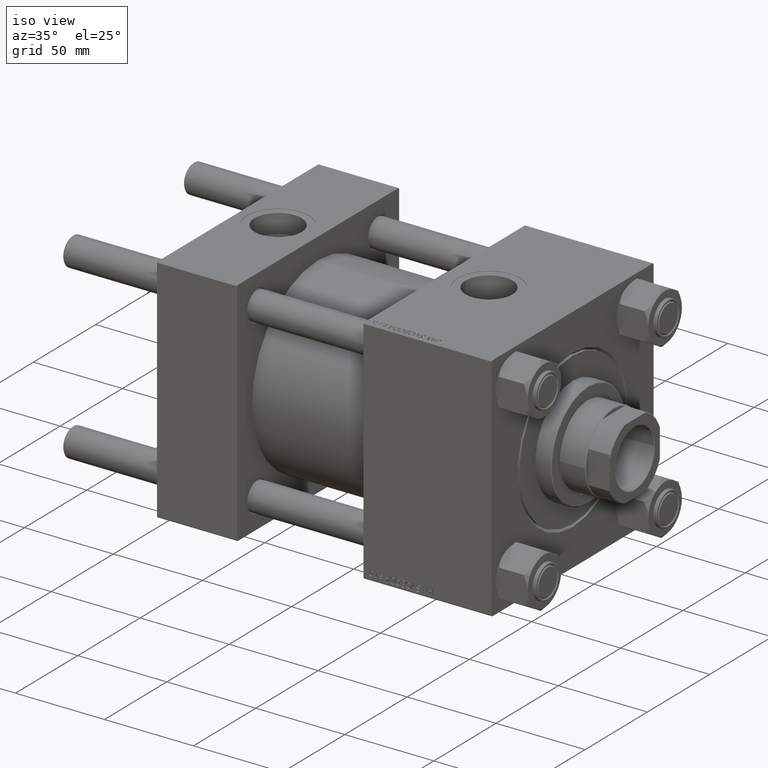
[diagram: clean part render]
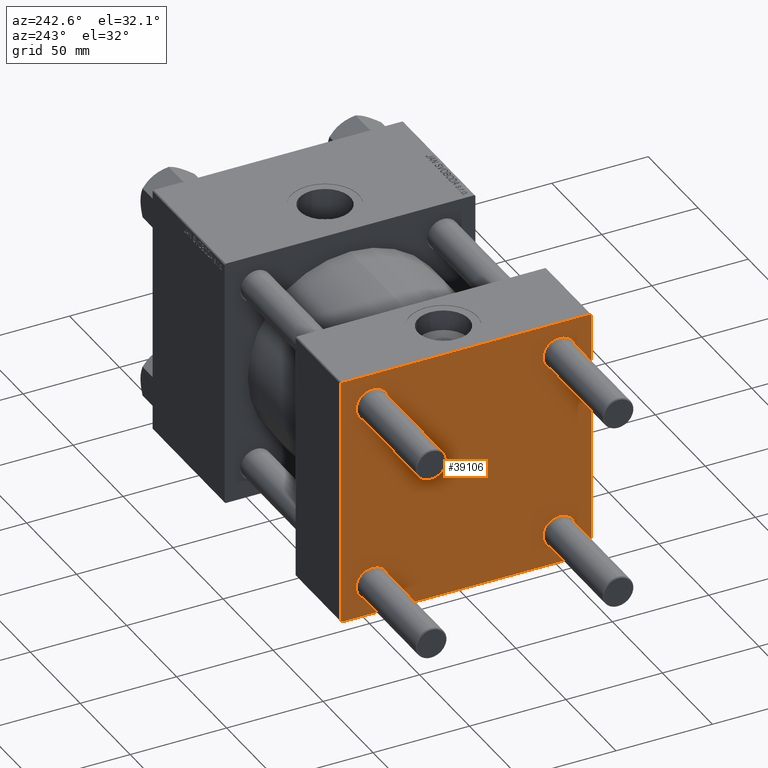
[diagram: tour spotlight — one face highlighted and labeled with its STEP entity id]
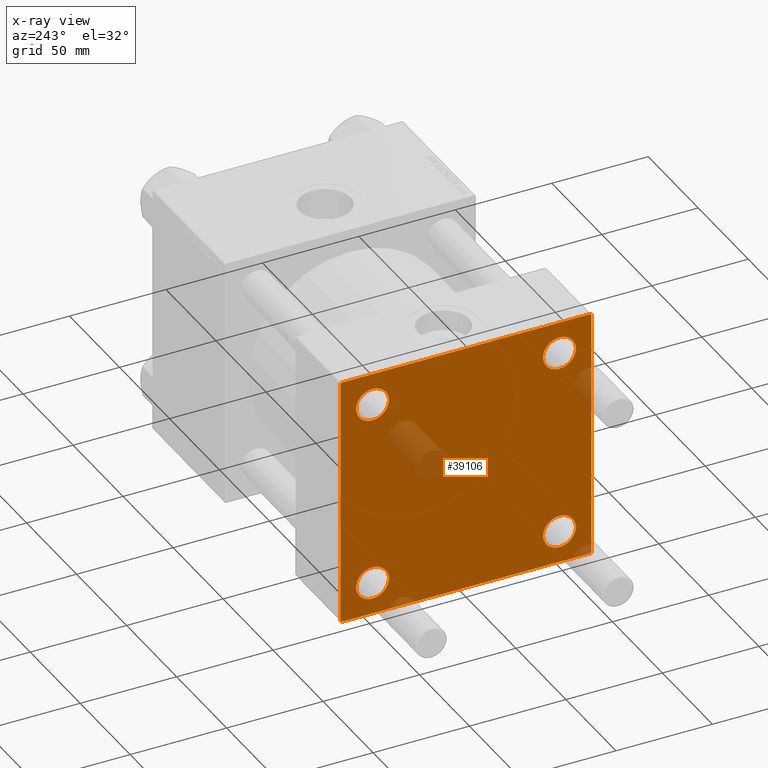
[diagram: x-ray of the same camera — body ghosted, this tour face saturated]
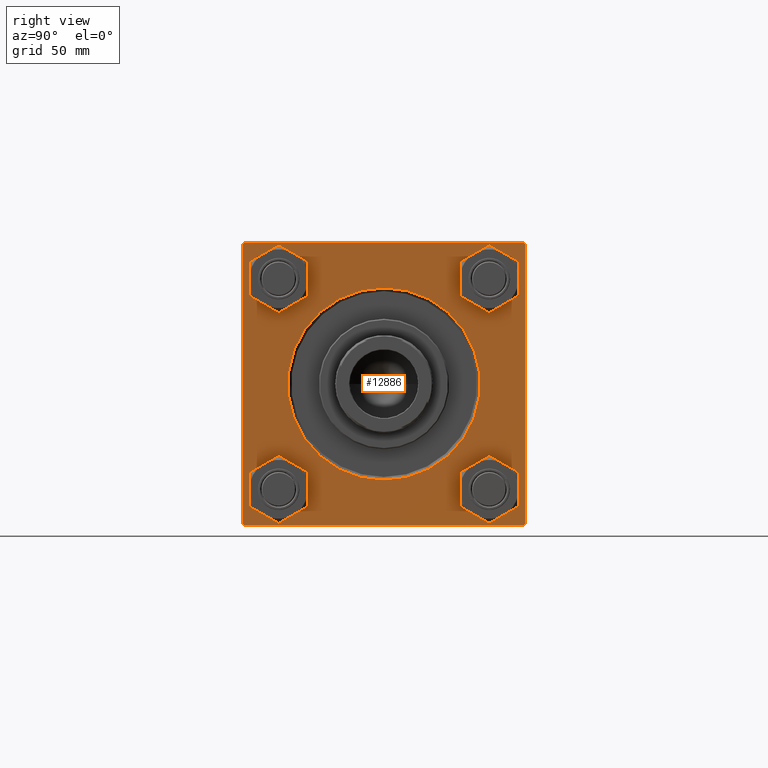
[diagram: tour spotlight — one face highlighted and labeled with its STEP entity id]
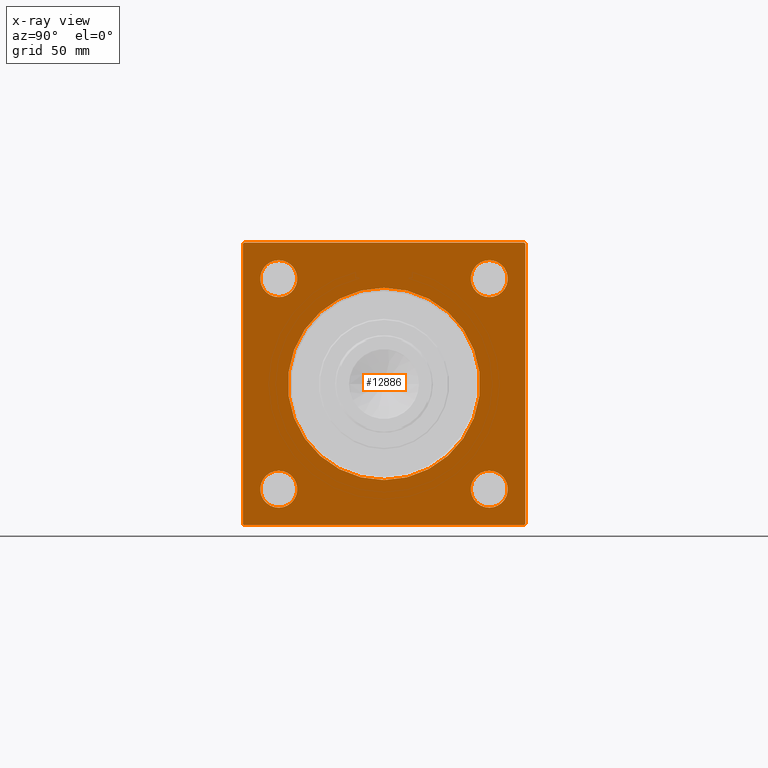
[diagram: x-ray of the same camera — body ghosted, this tour face saturated]
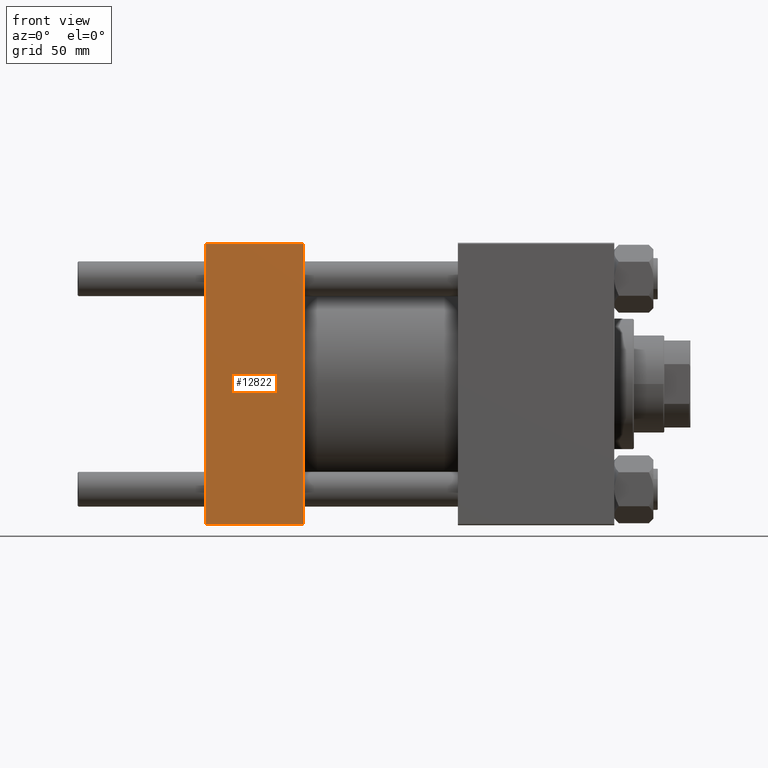
[diagram: tour spotlight — one face highlighted and labeled with its STEP entity id]
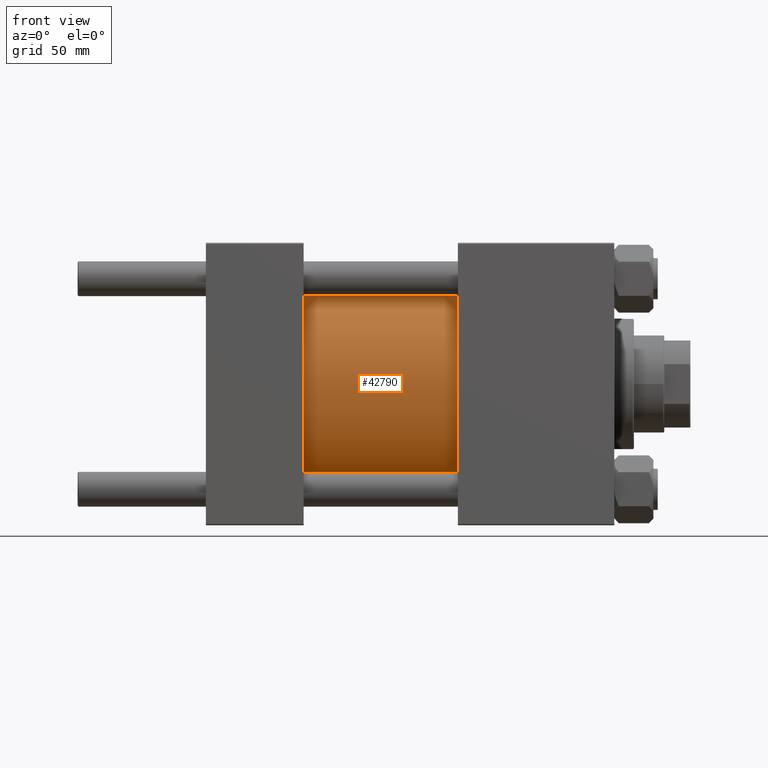
[diagram: tour spotlight — one face highlighted and labeled with its STEP entity id]
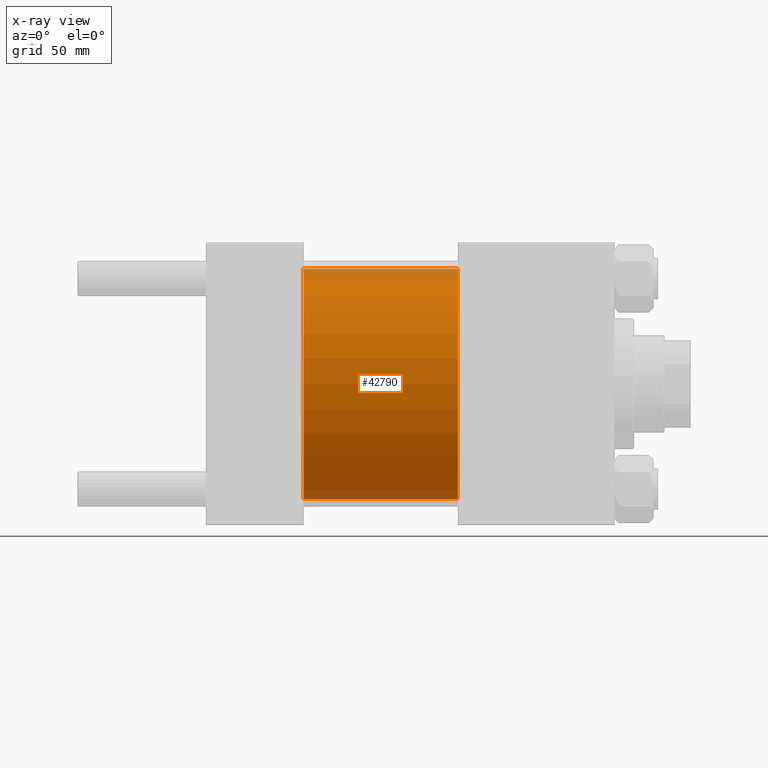
[diagram: x-ray of the same camera — body ghosted, this tour face saturated]
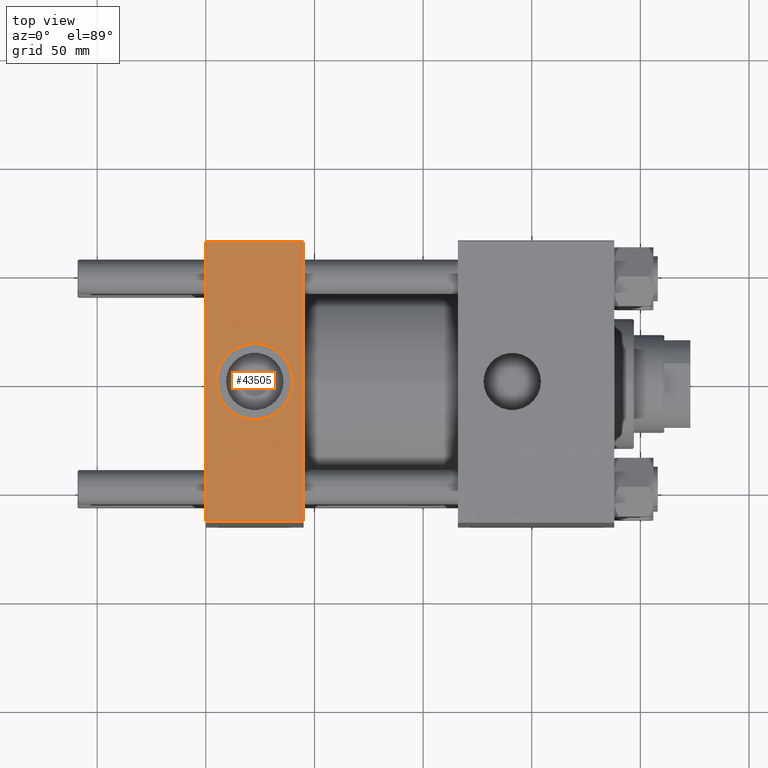
[diagram: tour spotlight — one face highlighted and labeled with its STEP entity id]
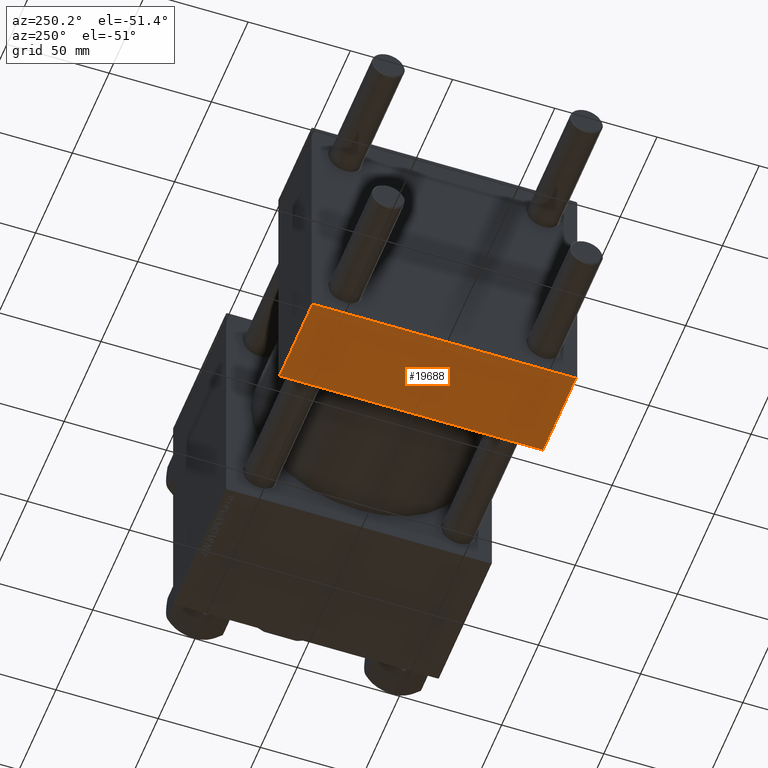
[diagram: tour spotlight — one face highlighted and labeled with its STEP entity id]
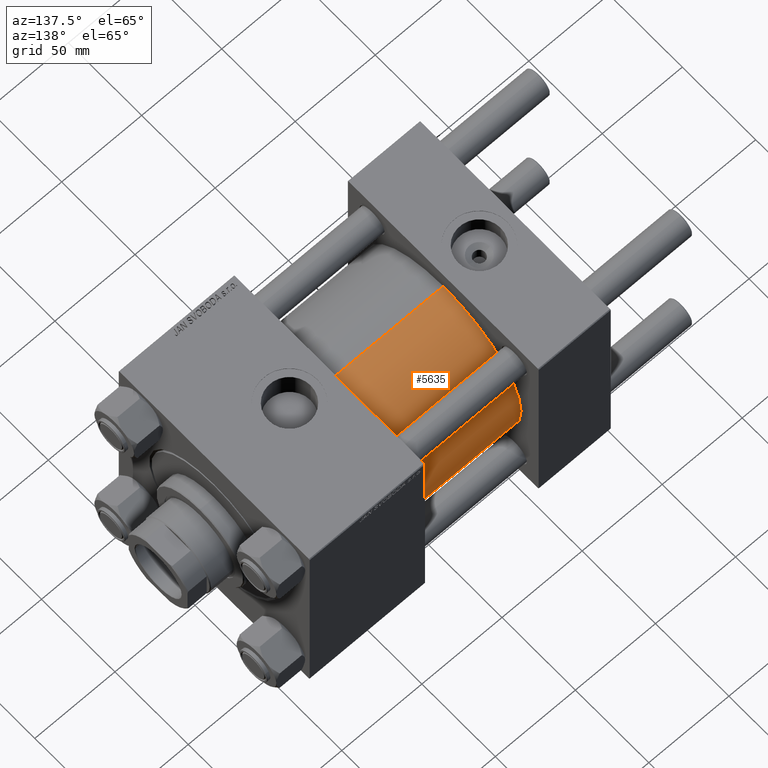
[diagram: tour spotlight — one face highlighted and labeled with its STEP entity id]
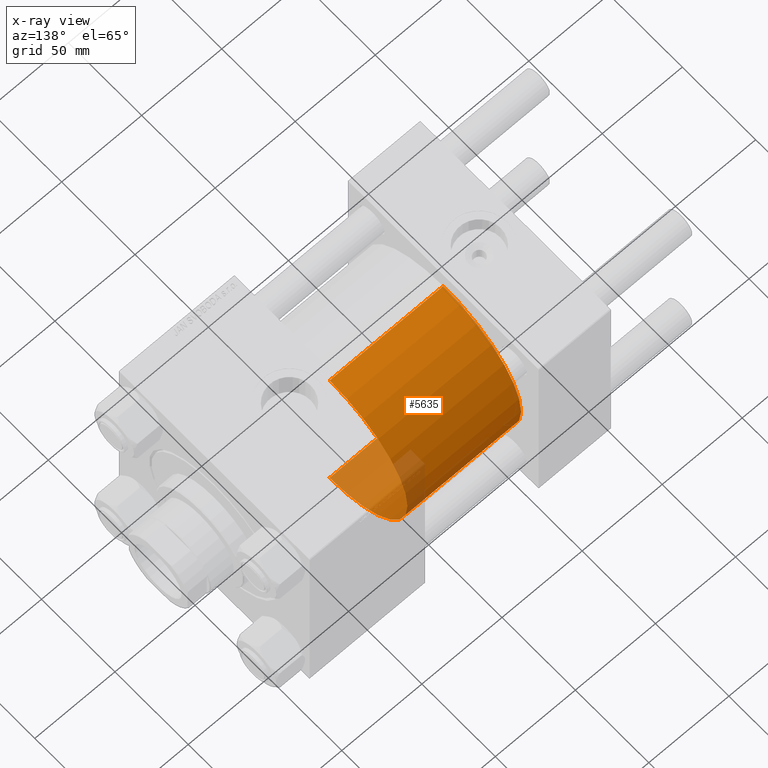
[diagram: x-ray of the same camera — body ghosted, this tour face saturated]
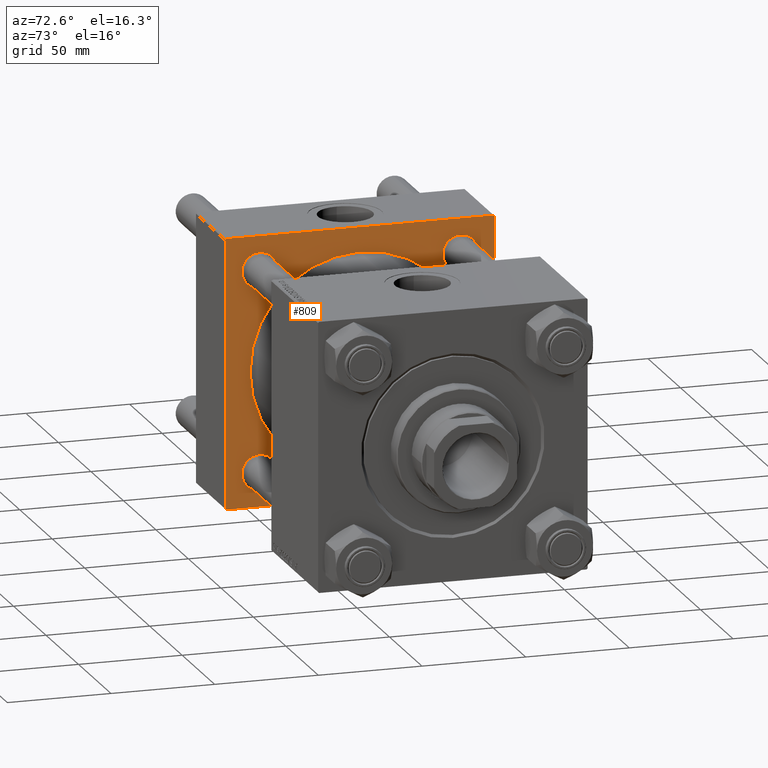
[diagram: tour spotlight — one face highlighted and labeled with its STEP entity id]
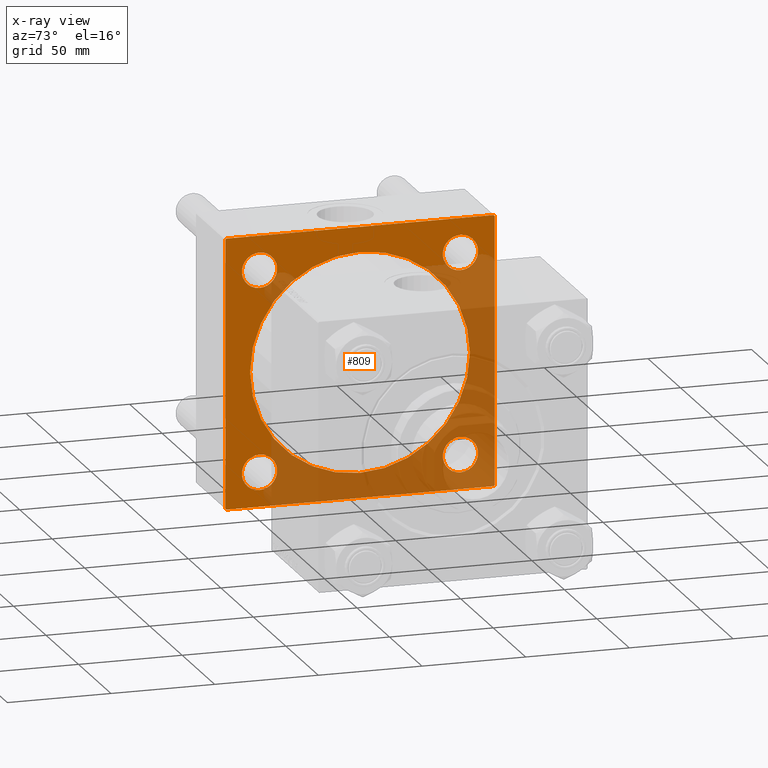
[diagram: x-ray of the same camera — body ghosted, this tour face saturated]
A machine part: a face-by-face anatomy tour. The part has 1182 B-rep faces; the first image is the clean iso view, then the 8 largest visible faces are spotlighted one at a time (largest first), each with its STEP entity span.

Face 1 — auxiliary view, entity #39106. An x-ray twin of the same camera follows (body ghosted, this face saturated) — the face is partly hidden behind the body. In plain terms, the highlighted planar face has unit normal (-1, 0, 0).
Definition (entity closure, byte-faithful):
#532 = ORIENTED_EDGE ( 'NONE', *, *, #37710, .T. ) ;
#618 = EDGE_CURVE ( 'NONE', #17889, #38107, #20585, .T. ) ;
#850 = CARTESIAN_POINT ( 'NONE',  ( 0.000000000000000000, 48.45000000000000995, -56.95000000000002416 ) ) ;
#864 = DIRECTION ( 'NONE',  ( 1.000000000000000000, -0.000000000000000000, 0.000000000000000000 ) ) ;
#1231 = AXIS2_PLACEMENT_3D ( 'NONE', #47064, #20145, #4177 ) ;
#2997 = DIRECTION ( 'NONE',  ( 1.000000000000000000, -0.000000000000000000, 0.000000000000000000 ) ) ;
#3660 = CIRCLE ( 'NONE', #1231, 8.500000000000007105 ) ;
#4149 = ORIENTED_EDGE ( 'NONE', *, *, #7508, .T. ) ;
#4177 = DIRECTION ( 'NONE',  ( 0.000000000000000000, 0.000000000000000000, 1.000000000000000000 ) ) ;
#4535 = EDGE_CURVE ( 'NONE', #9883, #34728, #29104, .T. ) ;
#4622 = VERTEX_POINT ( 'NONE', #43110 ) ;
#6607 = VECTOR ( 'NONE', #26924, 1000.000000000000000 ) ;
#6937 = ORIENTED_EDGE ( 'NONE', *, *, #43669, .F. ) ;
#7508 = EDGE_CURVE ( 'NONE', #4622, #33716, #13466, .T. ) ;
#7590 = CARTESIAN_POINT ( 'NONE',  ( 0.000000000000000000, -48.44999999999999574, 48.45000000000003126 ) ) ;
#7780 = AXIS2_PLACEMENT_3D ( 'NONE', #21555, #21045, #12938 ) ;
#8041 = VERTEX_POINT ( 'NONE', #45496 ) ;
#8086 = EDGE_CURVE ( 'NONE', #40024, #17889, #33334, .T. ) ;
#8195 = DIRECTION ( 'NONE',  ( 0.000000000000000000, -1.000000000000000000, -1.067522139062650425E-16 ) ) ;
#8487 = CARTESIAN_POINT ( 'NONE',  ( 0.000000000000000000, 48.45000000000000995, -48.45000000000001705 ) ) ;
#8488 = CIRCLE ( 'NONE', #35186, 8.500000000000007105 ) ;
#8632 = PLANE ( 'NONE',  #41792 ) ;
#8921 = CARTESIAN_POINT ( 'NONE',  ( 0.000000000000000000, 48.45000000000000995, 39.95000000000000284 ) ) ;
#9178 = DIRECTION ( 'NONE',  ( 0.000000000000000000, -0.7071067811865279218, 0.7071067811865671127 ) ) ;
#9883 = VERTEX_POINT ( 'NONE', #32906 ) ;
#10151 = VERTEX_POINT ( 'NONE', #8921 ) ;
#10246 = DIRECTION ( 'NONE',  ( 0.000000000000000000, -1.000000000000000000, -1.067522139062650425E-16 ) ) ;
#10354 = ORIENTED_EDGE ( 'NONE', *, *, #43896, .T. ) ;
#10590 = VECTOR ( 'NONE', #44684, 1000.000000000000000 ) ;
#10896 = CIRCLE ( 'NONE', #32784, 8.500000000000007105 ) ;
#10987 = CARTESIAN_POINT ( 'NONE',  ( 0.000000000000000000, -48.44999999999999574, -56.95000000000003837 ) ) ;
#11675 = DIRECTION ( 'NONE',  ( -1.000000000000000000, 0.000000000000000000, -0.000000000000000000 ) ) ;
#12191 = EDGE_CURVE ( 'NONE', #34728, #9883, #13049, .T. ) ;
#12896 = EDGE_CURVE ( 'NONE', #33716, #40024, #40266, .T. ) ;
#12938 = DIRECTION ( 'NONE',  ( 0.000000000000000000, 0.000000000000000000, 1.000000000000000000 ) ) ;
#13033 = VERTEX_POINT ( 'NONE', #850 ) ;
#13049 = CIRCLE ( 'NONE', #21120, 8.500000000000007105 ) ;
#13466 = LINE ( 'NONE', #37551, #10590 ) ;
#13515 = CARTESIAN_POINT ( 'NONE',  ( 0.000000000000000000, -65.00000000000000000, 65.00000000000000000 ) ) ;
#13637 = EDGE_CURVE ( 'NONE', #45376, #38107, #34041, .T. ) ;
#13924 = ORIENTED_EDGE ( 'NONE', *, *, #30021, .T. ) ;
#14041 = ORIENTED_EDGE ( 'NONE', *, *, #8086, .T. ) ;
#14138 = EDGE_LOOP ( 'NONE', ( #4149, #35321, #14041, #17591, #33041, #13924, #6937, #14891 ) ) ;
#14220 = CARTESIAN_POINT ( 'NONE',  ( 0.000000000000000000, -64.49999999999997158, 65.00000000000000000 ) ) ;
#14874 = AXIS2_PLACEMENT_3D ( 'NONE', #29884, #2997, #45612 ) ;
#14891 = ORIENTED_EDGE ( 'NONE', *, *, #31510, .T. ) ;
#15231 = CARTESIAN_POINT ( 'NONE',  ( 0.000000000000000000, 48.45000000000000995, 48.45000000000001705 ) ) ;
#15624 = CARTESIAN_POINT ( 'NONE',  ( 0.000000000000000000, -65.00000000000000000, 64.50000000000000000 ) ) ;
#16342 = DIRECTION ( 'NONE',  ( 0.000000000000000000, 0.000000000000000000, 1.000000000000000000 ) ) ;
#16784 = CARTESIAN_POINT ( 'NONE',  ( 0.000000000000000000, -64.75000000000176215, -64.74999999999816680 ) ) ;
#16806 = LINE ( 'NONE', #27969, #31290 ) ;
#17158 = EDGE_LOOP ( 'NONE', ( #45775, #10354 ) ) ;
#17287 = CARTESIAN_POINT ( 'NONE',  ( 0.000000000000000000, -48.44999999999999574, 48.45000000000003126 ) ) ;
#17591 = ORIENTED_EDGE ( 'NONE', *, *, #618, .T. ) ;
#17889 = VERTEX_POINT ( 'NONE', #49056 ) ;
#18048 = VECTOR ( 'NONE', #49906, 1000.000000000000000 ) ;
#19527 = EDGE_CURVE ( 'NONE', #41444, #10151, #21372, .T. ) ;
#19663 = CARTESIAN_POINT ( 'NONE',  ( -0.000000000000000000, -64.74999999999819522, 64.75000000000179057 ) ) ;
#20145 = DIRECTION ( 'NONE',  ( 1.000000000000000000, -0.000000000000000000, 0.000000000000000000 ) ) ;
#20585 = LINE ( 'NONE', #16784, #24904 ) ;
#21035 = EDGE_LOOP ( 'NONE', ( #532, #47639 ) ) ;
#21045 = DIRECTION ( 'NONE',  ( 1.000000000000000000, -0.000000000000000000, 0.000000000000000000 ) ) ;
#21120 = AXIS2_PLACEMENT_3D ( 'NONE', #17287, #41632, #44956 ) ;
#21150 = EDGE_CURVE ( 'NONE', #10151, #41444, #45750, .T. ) ;
#21330 = VECTOR ( 'NONE', #40216, 1000.000000000000114 ) ;
#21372 = CIRCLE ( 'NONE', #14874, 8.500000000000007105 ) ;
#21472 = ORIENTED_EDGE ( 'NONE', *, *, #19527, .T. ) ;
#21555 = CARTESIAN_POINT ( 'NONE',  ( 0.000000000000000000, 48.45000000000000995, -48.45000000000001705 ) ) ;
#21904 = CARTESIAN_POINT ( 'NONE',  ( 0.000000000000000000, 65.00000000000000000, -64.99999999999998579 ) ) ;
#22714 = VECTOR ( 'NONE', #10246, 1000.000000000000000 ) ;
#23168 = CIRCLE ( 'NONE', #7780, 8.500000000000007105 ) ;
#23334 = DIRECTION ( 'NONE',  ( -0.000000000000000000, 0.000000000000000000, 1.000000000000000000 ) ) ;
#23440 = AXIS2_PLACEMENT_3D ( 'NONE', #7590, #23549, #50231 ) ;
#23549 = DIRECTION ( 'NONE',  ( 1.000000000000000000, -0.000000000000000000, 0.000000000000000000 ) ) ;
#23584 = FACE_BOUND ( 'NONE', #21035, .T. ) ;
#24904 = VECTOR ( 'NONE', #9178, 1000.000000000000000 ) ;
#25208 = ORIENTED_EDGE ( 'NONE', *, *, #12191, .T. ) ;
#25904 = VERTEX_POINT ( 'NONE', #33530 ) ;
#26295 = AXIS2_PLACEMENT_3D ( 'NONE', #15231, #49763, #26408 ) ;
#26408 = DIRECTION ( 'NONE',  ( 0.000000000000000000, 0.000000000000000000, 1.000000000000000000 ) ) ;
#26629 = VERTEX_POINT ( 'NONE', #28481 ) ;
#26749 = CARTESIAN_POINT ( 'NONE',  ( 0.000000000000000000, 65.00000000000000000, -64.49999999999995737 ) ) ;
#26924 = DIRECTION ( 'NONE',  ( 0.000000000000000000, 0.000000000000000000, -1.000000000000000000 ) ) ;
#27008 = CARTESIAN_POINT ( 'NONE',  ( 0.000000000000000000, -48.44999999999999574, -48.45000000000003126 ) ) ;
#27398 = FACE_BOUND ( 'NONE', #33243, .T. ) ;
#27969 = CARTESIAN_POINT ( 'NONE',  ( 0.000000000000000000, 65.00000000000000000, 65.00000000000001421 ) ) ;
#28287 = CARTESIAN_POINT ( 'NONE',  ( 0.000000000000000000, 64.74999999999998579, 64.74999999999998579 ) ) ;
#28481 = CARTESIAN_POINT ( 'NONE',  ( 0.000000000000000000, -48.44999999999999574, -39.95000000000001705 ) ) ;
#29094 = CARTESIAN_POINT ( 'NONE',  ( 0.000000000000000000, 64.74999999999997158, -64.74999999999997158 ) ) ;
#29104 = CIRCLE ( 'NONE', #23440, 8.500000000000007105 ) ;
#29884 = CARTESIAN_POINT ( 'NONE',  ( 0.000000000000000000, 48.45000000000000995, 48.45000000000001705 ) ) ;
#30021 = EDGE_CURVE ( 'NONE', #45376, #41354, #47090, .T. ) ;
#30857 = VECTOR ( 'NONE', #44084, 1000.000000000000114 ) ;
#31290 = VECTOR ( 'NONE', #8195, 1000.000000000000000 ) ;
#31510 = EDGE_CURVE ( 'NONE', #25904, #4622, #37340, .T. ) ;
#32115 = ORIENTED_EDGE ( 'NONE', *, *, #4535, .T. ) ;
#32784 = AXIS2_PLACEMENT_3D ( 'NONE', #8487, #43502, #34618 ) ;
#32906 = CARTESIAN_POINT ( 'NONE',  ( 0.000000000000000000, -48.44999999999999574, 56.95000000000003837 ) ) ;
#33041 = ORIENTED_EDGE ( 'NONE', *, *, #13637, .F. ) ;
#33243 = EDGE_LOOP ( 'NONE', ( #32115, #25208 ) ) ;
#33334 = LINE ( 'NONE', #21904, #22714 ) ;
#33530 = CARTESIAN_POINT ( 'NONE',  ( 0.000000000000000000, 64.49999999999997158, 65.00000000000001421 ) ) ;
#33716 = VERTEX_POINT ( 'NONE', #26749 ) ;
#34041 = LINE ( 'NONE', #13515, #6607 ) ;
#34618 = DIRECTION ( 'NONE',  ( 0.000000000000000000, 0.000000000000000000, 1.000000000000000000 ) ) ;
#34728 = VERTEX_POINT ( 'NONE', #46296 ) ;
#34752 = EDGE_CURVE ( 'NONE', #8041, #13033, #10896, .T. ) ;
#34762 = EDGE_CURVE ( 'NONE', #42629, #26629, #8488, .T. ) ;
#35186 = AXIS2_PLACEMENT_3D ( 'NONE', #27008, #864, #16342 ) ;
#35321 = ORIENTED_EDGE ( 'NONE', *, *, #12896, .T. ) ;
#35516 = FACE_BOUND ( 'NONE', #17158, .T. ) ;
#37340 = LINE ( 'NONE', #28287, #21330 ) ;
#37348 = CARTESIAN_POINT ( 'NONE',  ( 0.000000000000000000, 64.49999999999997158, -64.99999999999998579 ) ) ;
#37551 = CARTESIAN_POINT ( 'NONE',  ( 0.000000000000000000, 65.00000000000000000, 65.00000000000001421 ) ) ;
#37710 = EDGE_CURVE ( 'NONE', #26629, #42629, #3660, .T. ) ;
#38107 = VERTEX_POINT ( 'NONE', #38876 ) ;
#38876 = CARTESIAN_POINT ( 'NONE',  ( 0.000000000000000000, -65.00000000000000000, -64.49999999999991473 ) ) ;
#39106 = ADVANCED_FACE ( 'NONE', ( #27398, #23584, #35516, #50016, #46438 ), #8632, .T. ) ;
#40024 = VERTEX_POINT ( 'NONE', #37348 ) ;
#40216 = DIRECTION ( 'NONE',  ( 0.000000000000000000, 0.7071067811865474617, -0.7071067811865474617 ) ) ;
#40266 = LINE ( 'NONE', #29094, #30857 ) ;
#41354 = VERTEX_POINT ( 'NONE', #14220 ) ;
#41444 = VERTEX_POINT ( 'NONE', #47873 ) ;
#41632 = DIRECTION ( 'NONE',  ( 1.000000000000000000, -0.000000000000000000, 0.000000000000000000 ) ) ;
#41792 = AXIS2_PLACEMENT_3D ( 'NONE', #42384, #11675, #23334 ) ;
#42384 = CARTESIAN_POINT ( 'NONE',  ( 0.000000000000000000, 0.000000000000000000, 0.000000000000000000 ) ) ;
#42629 = VERTEX_POINT ( 'NONE', #10987 ) ;
#42672 = ORIENTED_EDGE ( 'NONE', *, *, #21150, .T. ) ;
#43064 = EDGE_LOOP ( 'NONE', ( #21472, #42672 ) ) ;
#43110 = CARTESIAN_POINT ( 'NONE',  ( 0.000000000000000000, 65.00000000000000000, 64.49999999999998579 ) ) ;
#43502 = DIRECTION ( 'NONE',  ( 1.000000000000000000, -0.000000000000000000, 0.000000000000000000 ) ) ;
#43669 = EDGE_CURVE ( 'NONE', #25904, #41354, #16806, .T. ) ;
#43896 = EDGE_CURVE ( 'NONE', #13033, #8041, #23168, .T. ) ;
#44084 = DIRECTION ( 'NONE',  ( -0.000000000000000000, -0.7071067811865474617, -0.7071067811865474617 ) ) ;
#44684 = DIRECTION ( 'NONE',  ( 0.000000000000000000, 0.000000000000000000, -1.000000000000000000 ) ) ;
#44956 = DIRECTION ( 'NONE',  ( 0.000000000000000000, 0.000000000000000000, 1.000000000000000000 ) ) ;
#45376 = VERTEX_POINT ( 'NONE', #15624 ) ;
#45496 = CARTESIAN_POINT ( 'NONE',  ( 0.000000000000000000, 48.45000000000000995, -39.95000000000000284 ) ) ;
#45612 = DIRECTION ( 'NONE',  ( 0.000000000000000000, 0.000000000000000000, 1.000000000000000000 ) ) ;
#45750 = CIRCLE ( 'NONE', #26295, 8.500000000000007105 ) ;
#45775 = ORIENTED_EDGE ( 'NONE', *, *, #34752, .T. ) ;
#46296 = CARTESIAN_POINT ( 'NONE',  ( 0.000000000000000000, -48.44999999999999574, 39.95000000000001705 ) ) ;
#46438 = FACE_OUTER_BOUND ( 'NONE', #14138, .T. ) ;
#47064 = CARTESIAN_POINT ( 'NONE',  ( 0.000000000000000000, -48.44999999999999574, -48.45000000000003126 ) ) ;
#47090 = LINE ( 'NONE', #19663, #18048 ) ;
#47639 = ORIENTED_EDGE ( 'NONE', *, *, #34762, .T. ) ;
#47873 = CARTESIAN_POINT ( 'NONE',  ( 0.000000000000000000, 48.45000000000000995, 56.95000000000002416 ) ) ;
#49056 = CARTESIAN_POINT ( 'NONE',  ( 0.000000000000000000, -64.49999999999994316, -65.00000000000000000 ) ) ;
#49763 = DIRECTION ( 'NONE',  ( 1.000000000000000000, -0.000000000000000000, 0.000000000000000000 ) ) ;
#49906 = DIRECTION ( 'NONE',  ( -0.000000000000000000, 0.7071067811865672237, 0.7071067811865279218 ) ) ;
#50016 = FACE_BOUND ( 'NONE', #43064, .T. ) ;
#50231 = DIRECTION ( 'NONE',  ( 0.000000000000000000, 0.000000000000000000, 1.000000000000000000 ) ) ;

Face 2 — right view, entity #12886. An x-ray twin of the same camera follows (body ghosted, this face saturated) — the face is partly hidden behind the body. In plain terms, the highlighted planar face has unit normal (-1, 0, 0).
Definition (entity closure, byte-faithful):
#235 = CARTESIAN_POINT ( 'NONE',  ( 188.0000000000000000, 5.419062086227035828E-15, 44.24999999999998579 ) ) ;
#420 = VECTOR ( 'NONE', #2054, 1000.000000000000000 ) ;
#543 = VERTEX_POINT ( 'NONE', #47755 ) ;
#858 = VERTEX_POINT ( 'NONE', #19019 ) ;
#1363 = VERTEX_POINT ( 'NONE', #27271 ) ;
#1382 = EDGE_CURVE ( 'NONE', #5339, #15830, #1437, .T. ) ;
#1422 = VERTEX_POINT ( 'NONE', #33886 ) ;
#1437 = CIRCLE ( 'NONE', #48464, 8.499999999999923617 ) ;
#2054 = DIRECTION ( 'NONE',  ( 0.000000000000000000, 0.000000000000000000, -1.000000000000000000 ) ) ;
#2287 = AXIS2_PLACEMENT_3D ( 'NONE', #26452, #30016, #10490 ) ;
#2950 = DIRECTION ( 'NONE',  ( 0.000000000000000000, 0.000000000000000000, 1.000000000000000000 ) ) ;
#2960 = CIRCLE ( 'NONE', #6228, 8.499999999999923617 ) ;
#3276 = EDGE_LOOP ( 'NONE', ( #45308, #45295 ) ) ;
#3469 = ORIENTED_EDGE ( 'NONE', *, *, #47620, .F. ) ;
#3826 = VERTEX_POINT ( 'NONE', #46087 ) ;
#4240 = FACE_BOUND ( 'NONE', #41125, .T. ) ;
#5072 = EDGE_CURVE ( 'NONE', #48582, #18041, #50193, .T. ) ;
#5339 = VERTEX_POINT ( 'NONE', #30291 ) ;
#5459 = CARTESIAN_POINT ( 'NONE',  ( 188.0000000000000000, 48.45000000000000995, 39.95000000000008811 ) ) ;
#5647 = EDGE_CURVE ( 'NONE', #543, #858, #41310, .T. ) ;
#6228 = AXIS2_PLACEMENT_3D ( 'NONE', #47966, #47205, #13193 ) ;
#6449 = VERTEX_POINT ( 'NONE', #10402 ) ;
#6725 = DIRECTION ( 'NONE',  ( -0.000000000000000000, -0.7071067811865376918, -0.7071067811865574537 ) ) ;
#6769 = EDGE_CURVE ( 'NONE', #38306, #24492, #35670, .T. ) ;
#6909 = CARTESIAN_POINT ( 'NONE',  ( 188.0000000000000000, 65.00000000000002842, 65.00000000000001421 ) ) ;
#7930 = VECTOR ( 'NONE', #30820, 1000.000000000000000 ) ;
#8065 = EDGE_CURVE ( 'NONE', #1422, #27367, #44759, .T. ) ;
#8323 = ORIENTED_EDGE ( 'NONE', *, *, #23197, .F. ) ;
#8390 = CARTESIAN_POINT ( 'NONE',  ( 188.0000000000000000, -48.44999999999999574, 48.45000000000003126 ) ) ;
#8812 = FACE_BOUND ( 'NONE', #37284, .T. ) ;
#8814 = CARTESIAN_POINT ( 'NONE',  ( 188.0000000000000000, -64.99999999999998579, -64.50000000000002842 ) ) ;
#9222 = VERTEX_POINT ( 'NONE', #18526 ) ;
#9788 = DIRECTION ( 'NONE',  ( -1.000000000000000000, 0.000000000000000000, -0.000000000000000000 ) ) ;
#10402 = CARTESIAN_POINT ( 'NONE',  ( 188.0000000000000000, -64.99999999999998579, 64.50000000000008527 ) ) ;
#10490 = DIRECTION ( 'NONE',  ( 0.000000000000000000, 0.000000000000000000, 1.000000000000000000 ) ) ;
#10778 = ORIENTED_EDGE ( 'NONE', *, *, #41363, .T. ) ;
#11104 = VECTOR ( 'NONE', #6725, 999.9999999999998863 ) ;
#11199 = DIRECTION ( 'NONE',  ( 0.000000000000000000, 0.000000000000000000, -1.000000000000000000 ) ) ;
#11676 = CARTESIAN_POINT ( 'NONE',  ( 188.0000000000000000, 0.000000000000000000, 0.000000000000000000 ) ) ;
#11975 = EDGE_CURVE ( 'NONE', #1363, #1422, #35052, .T. ) ;
#12076 = DIRECTION ( 'NONE',  ( -0.000000000000000000, 0.7071067811865671127, 0.7071067811865279218 ) ) ;
#12862 = PLANE ( 'NONE',  #32465 ) ;
#12886 = ADVANCED_FACE ( 'NONE', ( #4240, #8812, #24271, #39763, #16671, #19702 ), #12862, .F. ) ;
#13090 = DIRECTION ( 'NONE',  ( 0.000000000000000000, 0.000000000000000000, 1.000000000000000000 ) ) ;
#13193 = DIRECTION ( 'NONE',  ( 0.000000000000000000, 0.000000000000000000, 1.000000000000000000 ) ) ;
#13393 = CARTESIAN_POINT ( 'NONE',  ( 188.0000000000000000, -64.50000000000002842, -65.00000000000001421 ) ) ;
#13465 = CARTESIAN_POINT ( 'NONE',  ( 188.0000000000000000, -64.99999999999998579, 65.00000000000000000 ) ) ;
#13539 = DIRECTION ( 'NONE',  ( 0.000000000000000000, -1.000000000000000000, -1.067522139062650425E-16 ) ) ;
#13548 = CARTESIAN_POINT ( 'NONE',  ( 188.0000000000000000, 65.00000000000002842, -64.50000000000001421 ) ) ;
#13584 = ORIENTED_EDGE ( 'NONE', *, *, #5072, .T. ) ;
#13837 = LINE ( 'NONE', #44797, #11104 ) ;
#14757 = LINE ( 'NONE', #6909, #15828 ) ;
#14946 = AXIS2_PLACEMENT_3D ( 'NONE', #46635, #27585, #26591 ) ;
#15029 = VECTOR ( 'NONE', #28875, 1000.000000000000000 ) ;
#15256 = CARTESIAN_POINT ( 'NONE',  ( 188.0000000000000000, -48.44999999999999574, -56.94999999999995310 ) ) ;
#15483 = DIRECTION ( 'NONE',  ( 0.000000000000000000, 0.000000000000000000, 1.000000000000000000 ) ) ;
#15828 = VECTOR ( 'NONE', #11199, 1000.000000000000000 ) ;
#15830 = VERTEX_POINT ( 'NONE', #48347 ) ;
#16135 = CARTESIAN_POINT ( 'NONE',  ( 188.0000000000000000, 65.00000000000002842, -64.50000000000001421 ) ) ;
#16136 = ORIENTED_EDGE ( 'NONE', *, *, #23883, .T. ) ;
#16499 = DIRECTION ( 'NONE',  ( 0.000000000000000000, 0.000000000000000000, 1.000000000000000000 ) ) ;
#16549 = DIRECTION ( 'NONE',  ( -1.000000000000000000, 0.000000000000000000, -0.000000000000000000 ) ) ;
#16625 = CARTESIAN_POINT ( 'NONE',  ( 188.0000000000000000, -64.50000000000002842, -65.00000000000001421 ) ) ;
#16671 = FACE_BOUND ( 'NONE', #22445, .T. ) ;
#16828 = DIRECTION ( 'NONE',  ( -1.000000000000000000, 0.000000000000000000, -0.000000000000000000 ) ) ;
#16961 = EDGE_LOOP ( 'NONE', ( #10778, #16136, #3469, #17967, #8323, #23075, #47298, #35644 ) ) ;
#17174 = CIRCLE ( 'NONE', #39034, 44.24999999999998579 ) ;
#17208 = ORIENTED_EDGE ( 'NONE', *, *, #26985, .T. ) ;
#17967 = ORIENTED_EDGE ( 'NONE', *, *, #6769, .T. ) ;
#18041 = VERTEX_POINT ( 'NONE', #15256 ) ;
#18158 = LINE ( 'NONE', #47305, #7930 ) ;
#18526 = CARTESIAN_POINT ( 'NONE',  ( 188.0000000000000000, 0.000000000000000000, -44.24999999999998579 ) ) ;
#19019 = CARTESIAN_POINT ( 'NONE',  ( 188.0000000000000000, -48.44999999999999574, 39.95000000000010232 ) ) ;
#19268 = VERTEX_POINT ( 'NONE', #235 ) ;
#19702 = FACE_OUTER_BOUND ( 'NONE', #16961, .T. ) ;
#20419 = DIRECTION ( 'NONE',  ( 0.000000000000000000, 0.000000000000000000, 1.000000000000000000 ) ) ;
#20780 = ORIENTED_EDGE ( 'NONE', *, *, #46107, .T. ) ;
#20911 = EDGE_CURVE ( 'NONE', #9222, #19268, #24669, .T. ) ;
#21539 = EDGE_CURVE ( 'NONE', #3826, #28186, #36842, .T. ) ;
#22445 = EDGE_LOOP ( 'NONE', ( #29908, #34428 ) ) ;
#23075 = ORIENTED_EDGE ( 'NONE', *, *, #11975, .T. ) ;
#23197 = EDGE_CURVE ( 'NONE', #1363, #24492, #14757, .T. ) ;
#23209 = CARTESIAN_POINT ( 'NONE',  ( 188.0000000000000000, -64.50000000000008527, 65.00000000000000000 ) ) ;
#23883 = EDGE_CURVE ( 'NONE', #27743, #32248, #48172, .T. ) ;
#24165 = EDGE_CURVE ( 'NONE', #28186, #3826, #45013, .T. ) ;
#24271 = FACE_BOUND ( 'NONE', #3276, .T. ) ;
#24492 = VERTEX_POINT ( 'NONE', #13548 ) ;
#24669 = CIRCLE ( 'NONE', #48194, 44.24999999999998579 ) ;
#26452 = CARTESIAN_POINT ( 'NONE',  ( 188.0000000000000000, -48.44999999999999574, -48.45000000000003126 ) ) ;
#26591 = DIRECTION ( 'NONE',  ( 0.000000000000000000, 0.000000000000000000, 1.000000000000000000 ) ) ;
#26702 = AXIS2_PLACEMENT_3D ( 'NONE', #8390, #30967, #16499 ) ;
#26735 = VECTOR ( 'NONE', #12076, 1000.000000000000000 ) ;
#26950 = CARTESIAN_POINT ( 'NONE',  ( 188.0000000000000000, 64.50000000000005684, 65.00000000000001421 ) ) ;
#26985 = EDGE_CURVE ( 'NONE', #15830, #5339, #2960, .T. ) ;
#27271 = CARTESIAN_POINT ( 'NONE',  ( 188.0000000000000000, 65.00000000000002842, 64.50000000000001421 ) ) ;
#27291 = CIRCLE ( 'NONE', #28133, 8.499999999999923617 ) ;
#27367 = VERTEX_POINT ( 'NONE', #23209 ) ;
#27585 = DIRECTION ( 'NONE',  ( -1.000000000000000000, 0.000000000000000000, -0.000000000000000000 ) ) ;
#27595 = VECTOR ( 'NONE', #13539, 1000.000000000000000 ) ;
#27621 = ORIENTED_EDGE ( 'NONE', *, *, #47848, .T. ) ;
#27743 = VERTEX_POINT ( 'NONE', #8814 ) ;
#28133 = AXIS2_PLACEMENT_3D ( 'NONE', #43742, #16828, #35604 ) ;
#28186 = VERTEX_POINT ( 'NONE', #5459 ) ;
#28303 = AXIS2_PLACEMENT_3D ( 'NONE', #32111, #47593, #20419 ) ;
#28341 = CARTESIAN_POINT ( 'NONE',  ( 188.0000000000000000, 0.000000000000000000, 0.000000000000000000 ) ) ;
#28579 = EDGE_CURVE ( 'NONE', #19268, #9222, #17174, .T. ) ;
#28875 = DIRECTION ( 'NONE',  ( 0.000000000000000000, 0.7071067811865279218, -0.7071067811865672237 ) ) ;
#29444 = LINE ( 'NONE', #13465, #420 ) ;
#29908 = ORIENTED_EDGE ( 'NONE', *, *, #20911, .T. ) ;
#30016 = DIRECTION ( 'NONE',  ( -1.000000000000000000, 0.000000000000000000, -0.000000000000000000 ) ) ;
#30291 = CARTESIAN_POINT ( 'NONE',  ( 188.0000000000000000, 48.45000000000000995, -56.94999999999993889 ) ) ;
#30709 = DIRECTION ( 'NONE',  ( -1.000000000000000000, 0.000000000000000000, -0.000000000000000000 ) ) ;
#30820 = DIRECTION ( 'NONE',  ( 0.000000000000000000, -1.000000000000000000, -2.135044278125300850E-16 ) ) ;
#30967 = DIRECTION ( 'NONE',  ( -1.000000000000000000, 0.000000000000000000, -0.000000000000000000 ) ) ;
#31888 = ORIENTED_EDGE ( 'NONE', *, *, #5647, .T. ) ;
#32111 = CARTESIAN_POINT ( 'NONE',  ( 188.0000000000000000, -48.44999999999999574, -48.45000000000003126 ) ) ;
#32248 = VERTEX_POINT ( 'NONE', #16625 ) ;
#32465 = AXIS2_PLACEMENT_3D ( 'NONE', #28341, #35179, #43836 ) ;
#33574 = CARTESIAN_POINT ( 'NONE',  ( 188.0000000000000000, 65.00000000000002842, 65.00000000000001421 ) ) ;
#33886 = CARTESIAN_POINT ( 'NONE',  ( 188.0000000000000000, 64.50000000000005684, 65.00000000000001421 ) ) ;
#34428 = ORIENTED_EDGE ( 'NONE', *, *, #28579, .T. ) ;
#34735 = EDGE_LOOP ( 'NONE', ( #20780, #31888 ) ) ;
#35052 = LINE ( 'NONE', #26950, #43853 ) ;
#35179 = DIRECTION ( 'NONE',  ( -1.000000000000000000, 0.000000000000000000, -0.000000000000000000 ) ) ;
#35604 = DIRECTION ( 'NONE',  ( 0.000000000000000000, 0.000000000000000000, 1.000000000000000000 ) ) ;
#35644 = ORIENTED_EDGE ( 'NONE', *, *, #45595, .T. ) ;
#35670 = LINE ( 'NONE', #16135, #26735 ) ;
#36002 = AXIS2_PLACEMENT_3D ( 'NONE', #48369, #9788, #13090 ) ;
#36842 = CIRCLE ( 'NONE', #14946, 8.499999999999923617 ) ;
#37284 = EDGE_LOOP ( 'NONE', ( #37616, #17208 ) ) ;
#37616 = ORIENTED_EDGE ( 'NONE', *, *, #1382, .T. ) ;
#38306 = VERTEX_POINT ( 'NONE', #40394 ) ;
#39034 = AXIS2_PLACEMENT_3D ( 'NONE', #11676, #30709, #15483 ) ;
#39645 = DIRECTION ( 'NONE',  ( 0.000000000000000000, 0.000000000000000000, 1.000000000000000000 ) ) ;
#39763 = FACE_BOUND ( 'NONE', #34735, .T. ) ;
#40394 = CARTESIAN_POINT ( 'NONE',  ( 188.0000000000000000, 64.50000000000002842, -64.99999999999998579 ) ) ;
#41125 = EDGE_LOOP ( 'NONE', ( #27621, #13584 ) ) ;
#41310 = CIRCLE ( 'NONE', #26702, 8.499999999999923617 ) ;
#41363 = EDGE_CURVE ( 'NONE', #6449, #27743, #29444, .T. ) ;
#43742 = CARTESIAN_POINT ( 'NONE',  ( 188.0000000000000000, -48.44999999999999574, 48.45000000000003126 ) ) ;
#43836 = DIRECTION ( 'NONE',  ( -0.000000000000000000, 0.000000000000000000, 1.000000000000000000 ) ) ;
#43853 = VECTOR ( 'NONE', #49817, 1000.000000000000000 ) ;
#44759 = LINE ( 'NONE', #33574, #27595 ) ;
#44797 = CARTESIAN_POINT ( 'NONE',  ( 188.0000000000000000, -64.99999999999998579, 64.50000000000008527 ) ) ;
#45013 = CIRCLE ( 'NONE', #36002, 8.499999999999923617 ) ;
#45295 = ORIENTED_EDGE ( 'NONE', *, *, #21539, .T. ) ;
#45308 = ORIENTED_EDGE ( 'NONE', *, *, #24165, .T. ) ;
#45565 = CARTESIAN_POINT ( 'NONE',  ( 188.0000000000000000, 48.45000000000000995, -48.45000000000001705 ) ) ;
#45595 = EDGE_CURVE ( 'NONE', #27367, #6449, #13837, .T. ) ;
#45810 = DIRECTION ( 'NONE',  ( -1.000000000000000000, 0.000000000000000000, -0.000000000000000000 ) ) ;
#46087 = CARTESIAN_POINT ( 'NONE',  ( 188.0000000000000000, 48.45000000000000995, 56.94999999999993889 ) ) ;
#46107 = EDGE_CURVE ( 'NONE', #858, #543, #27291, .T. ) ;
#46635 = CARTESIAN_POINT ( 'NONE',  ( 188.0000000000000000, 48.45000000000000995, 48.45000000000001705 ) ) ;
#47205 = DIRECTION ( 'NONE',  ( -1.000000000000000000, 0.000000000000000000, -0.000000000000000000 ) ) ;
#47298 = ORIENTED_EDGE ( 'NONE', *, *, #8065, .T. ) ;
#47305 = CARTESIAN_POINT ( 'NONE',  ( 188.0000000000000000, 65.00000000000002842, -64.99999999999998579 ) ) ;
#47593 = DIRECTION ( 'NONE',  ( -1.000000000000000000, 0.000000000000000000, -0.000000000000000000 ) ) ;
#47620 = EDGE_CURVE ( 'NONE', #38306, #32248, #18158, .T. ) ;
#47755 = CARTESIAN_POINT ( 'NONE',  ( 188.0000000000000000, -48.44999999999999574, 56.94999999999995310 ) ) ;
#47770 = CARTESIAN_POINT ( 'NONE',  ( 188.0000000000000000, 0.000000000000000000, 0.000000000000000000 ) ) ;
#47848 = EDGE_CURVE ( 'NONE', #18041, #48582, #50105, .T. ) ;
#47966 = CARTESIAN_POINT ( 'NONE',  ( 188.0000000000000000, 48.45000000000000995, -48.45000000000001705 ) ) ;
#48172 = LINE ( 'NONE', #13393, #15029 ) ;
#48194 = AXIS2_PLACEMENT_3D ( 'NONE', #47770, #16549, #39645 ) ;
#48347 = CARTESIAN_POINT ( 'NONE',  ( 188.0000000000000000, 48.45000000000000995, -39.95000000000008811 ) ) ;
#48369 = CARTESIAN_POINT ( 'NONE',  ( 188.0000000000000000, 48.45000000000000995, 48.45000000000001705 ) ) ;
#48464 = AXIS2_PLACEMENT_3D ( 'NONE', #45565, #45810, #2950 ) ;
#48582 = VERTEX_POINT ( 'NONE', #48951 ) ;
#48951 = CARTESIAN_POINT ( 'NONE',  ( 188.0000000000000000, -48.44999999999999574, -39.95000000000010232 ) ) ;
#49817 = DIRECTION ( 'NONE',  ( 0.000000000000000000, -0.7071067811865279218, 0.7071067811865671127 ) ) ;
#50105 = CIRCLE ( 'NONE', #2287, 8.499999999999923617 ) ;
#50193 = CIRCLE ( 'NONE', #28303, 8.499999999999923617 ) ;

Face 3 — front view, entity #12822. In plain terms, the highlighted planar face has unit normal (0, 1, 0).
Definition (entity closure, byte-faithful):
#5013 = DIRECTION ( 'NONE',  ( 0.000000000000000000, -0.000000000000000000, 1.000000000000000000 ) ) ;
#5200 = VECTOR ( 'NONE', #23552, 1000.000000000000000 ) ;
#6607 = VECTOR ( 'NONE', #26924, 1000.000000000000000 ) ;
#7795 = ORIENTED_EDGE ( 'NONE', *, *, #13637, .T. ) ;
#8305 = DIRECTION ( 'NONE',  ( -0.000000000000000000, 1.000000000000000000, 0.000000000000000000 ) ) ;
#12822 = ADVANCED_FACE ( 'NONE', ( #35951 ), #20215, .F. ) ;
#13515 = CARTESIAN_POINT ( 'NONE',  ( 0.000000000000000000, -65.00000000000000000, 65.00000000000000000 ) ) ;
#13637 = EDGE_CURVE ( 'NONE', #45376, #38107, #34041, .T. ) ;
#15624 = CARTESIAN_POINT ( 'NONE',  ( 0.000000000000000000, -65.00000000000000000, 64.50000000000000000 ) ) ;
#16623 = LINE ( 'NONE', #28543, #40792 ) ;
#18673 = EDGE_CURVE ( 'NONE', #27580, #36122, #16623, .T. ) ;
#19631 = ORIENTED_EDGE ( 'NONE', *, *, #45388, .T. ) ;
#19668 = CARTESIAN_POINT ( 'NONE',  ( 45.00000000000000000, -65.00000000000000000, 64.50000000000000000 ) ) ;
#20215 = PLANE ( 'NONE',  #33308 ) ;
#23552 = DIRECTION ( 'NONE',  ( 1.000000000000000000, 0.000000000000000000, 0.000000000000000000 ) ) ;
#26924 = DIRECTION ( 'NONE',  ( 0.000000000000000000, 0.000000000000000000, -1.000000000000000000 ) ) ;
#27368 = LINE ( 'NONE', #42855, #5200 ) ;
#27580 = VERTEX_POINT ( 'NONE', #45865 ) ;
#28039 = DIRECTION ( 'NONE',  ( 0.000000000000000000, 0.000000000000000000, -1.000000000000000000 ) ) ;
#28543 = CARTESIAN_POINT ( 'NONE',  ( 45.00000000000000000, -65.00000000000000000, 65.00000000000000000 ) ) ;
#30680 = ORIENTED_EDGE ( 'NONE', *, *, #34462, .T. ) ;
#31895 = CARTESIAN_POINT ( 'NONE',  ( 45.00000000000000000, -65.00000000000000000, 65.00000000000000000 ) ) ;
#33308 = AXIS2_PLACEMENT_3D ( 'NONE', #31895, #8305, #5013 ) ;
#34041 = LINE ( 'NONE', #13515, #6607 ) ;
#34462 = EDGE_CURVE ( 'NONE', #38107, #36122, #27368, .T. ) ;
#35145 = DIRECTION ( 'NONE',  ( -1.000000000000000000, 0.000000000000000000, 0.000000000000000000 ) ) ;
#35951 = FACE_OUTER_BOUND ( 'NONE', #40185, .T. ) ;
#36122 = VERTEX_POINT ( 'NONE', #47736 ) ;
#38107 = VERTEX_POINT ( 'NONE', #38876 ) ;
#38876 = CARTESIAN_POINT ( 'NONE',  ( 0.000000000000000000, -65.00000000000000000, -64.49999999999991473 ) ) ;
#39161 = ORIENTED_EDGE ( 'NONE', *, *, #18673, .F. ) ;
#40185 = EDGE_LOOP ( 'NONE', ( #7795, #30680, #39161, #19631 ) ) ;
#40278 = VECTOR ( 'NONE', #35145, 1000.000000000000000 ) ;
#40792 = VECTOR ( 'NONE', #28039, 1000.000000000000000 ) ;
#42531 = LINE ( 'NONE', #19668, #40278 ) ;
#42855 = CARTESIAN_POINT ( 'NONE',  ( 45.00000000000000000, -65.00000000000000000, -64.49999999999991473 ) ) ;
#45376 = VERTEX_POINT ( 'NONE', #15624 ) ;
#45388 = EDGE_CURVE ( 'NONE', #27580, #45376, #42531, .T. ) ;
#45865 = CARTESIAN_POINT ( 'NONE',  ( 45.00000000000000000, -65.00000000000000000, 64.50000000000000000 ) ) ;
#47736 = CARTESIAN_POINT ( 'NONE',  ( 45.00000000000000000, -65.00000000000000000, -64.49999999999991473 ) ) ;

Face 4 — front view, entity #42790. An x-ray twin of the same camera follows (body ghosted, this face saturated) — the face is partly hidden behind the body. In plain terms, the highlighted cylindrical surface (partial cylindrical patch) has radius 53 mm, axis along (-1, -0, -0).
Definition (entity closure, byte-faithful):
#547 = CARTESIAN_POINT ( 'NONE',  ( 45.00000000000000000, 6.490628035480973107E-15, -53.00000000000000711 ) ) ;
#2088 = DIRECTION ( 'NONE',  ( 0.000000000000000000, 0.000000000000000000, -1.000000000000000000 ) ) ;
#2116 = LINE ( 'NONE', #38535, #3004 ) ;
#2727 = CIRCLE ( 'NONE', #10014, 53.00000000000000711 ) ;
#3004 = VECTOR ( 'NONE', #7342, 1000.000000000000000 ) ;
#3176 = ORIENTED_EDGE ( 'NONE', *, *, #38947, .F. ) ;
#3803 = CARTESIAN_POINT ( 'NONE',  ( 45.00000000000000000, 0.000000000000000000, 0.000000000000000000 ) ) ;
#6782 = LINE ( 'NONE', #22490, #17315 ) ;
#7342 = DIRECTION ( 'NONE',  ( -1.000000000000000000, -0.000000000000000000, -0.000000000000000000 ) ) ;
#9291 = ORIENTED_EDGE ( 'NONE', *, *, #33401, .T. ) ;
#10014 = AXIS2_PLACEMENT_3D ( 'NONE', #3803, #23821, #38301 ) ;
#10737 = VERTEX_POINT ( 'NONE', #15887 ) ;
#11484 = VERTEX_POINT ( 'NONE', #44690 ) ;
#15887 = CARTESIAN_POINT ( 'NONE',  ( 45.00000000000000000, 0.000000000000000000, 53.00000000000000711 ) ) ;
#16710 = ORIENTED_EDGE ( 'NONE', *, *, #19217, .T. ) ;
#16971 = VERTEX_POINT ( 'NONE', #39913 ) ;
#17315 = VECTOR ( 'NONE', #18198, 1000.000000000000000 ) ;
#18198 = DIRECTION ( 'NONE',  ( -1.000000000000000000, -0.000000000000000000, -0.000000000000000000 ) ) ;
#18946 = VERTEX_POINT ( 'NONE', #547 ) ;
#19217 = EDGE_CURVE ( 'NONE', #10737, #18946, #2727, .T. ) ;
#19912 = CIRCLE ( 'NONE', #45042, 53.00000000000000711 ) ;
#21103 = CARTESIAN_POINT ( 'NONE',  ( 115.9999999999999858, 0.000000000000000000, 0.000000000000000000 ) ) ;
#22006 = EDGE_LOOP ( 'NONE', ( #32200, #3176, #9291, #16710 ) ) ;
#22490 = CARTESIAN_POINT ( 'NONE',  ( 115.9999999999999858, 0.000000000000000000, 53.00000000000000711 ) ) ;
#23821 = DIRECTION ( 'NONE',  ( 1.000000000000000000, -0.000000000000000000, 0.000000000000000000 ) ) ;
#30410 = AXIS2_PLACEMENT_3D ( 'NONE', #31518, #38629, #46747 ) ;
#31518 = CARTESIAN_POINT ( 'NONE',  ( 115.9999999999999858, 0.000000000000000000, 0.000000000000000000 ) ) ;
#32200 = ORIENTED_EDGE ( 'NONE', *, *, #46215, .F. ) ;
#33401 = EDGE_CURVE ( 'NONE', #16971, #10737, #6782, .T. ) ;
#36583 = DIRECTION ( 'NONE',  ( 1.000000000000000000, 0.000000000000000000, 0.000000000000000000 ) ) ;
#38301 = DIRECTION ( 'NONE',  ( 0.000000000000000000, 0.000000000000000000, 1.000000000000000000 ) ) ;
#38535 = CARTESIAN_POINT ( 'NONE',  ( 115.9999999999999858, 6.490628035480973107E-15, -53.00000000000000711 ) ) ;
#38629 = DIRECTION ( 'NONE',  ( -1.000000000000000000, -0.000000000000000000, -0.000000000000000000 ) ) ;
#38871 = CYLINDRICAL_SURFACE ( 'NONE', #30410, 53.00000000000000711 ) ;
#38947 = EDGE_CURVE ( 'NONE', #16971, #11484, #19912, .T. ) ;
#39913 = CARTESIAN_POINT ( 'NONE',  ( 115.9999999999999858, 0.000000000000000000, 53.00000000000000711 ) ) ;
#42186 = FACE_OUTER_BOUND ( 'NONE', #22006, .T. ) ;
#42790 = ADVANCED_FACE ( 'NONE', ( #42186 ), #38871, .T. ) ;
#44690 = CARTESIAN_POINT ( 'NONE',  ( 115.9999999999999858, 6.490628035480973107E-15, -53.00000000000000711 ) ) ;
#45042 = AXIS2_PLACEMENT_3D ( 'NONE', #21103, #36583, #2088 ) ;
#46215 = EDGE_CURVE ( 'NONE', #11484, #18946, #2116, .T. ) ;
#46747 = DIRECTION ( 'NONE',  ( 0.000000000000000000, 0.000000000000000000, 1.000000000000000000 ) ) ;

Face 5 — top view, entity #43505. In plain terms, the highlighted planar face has unit normal (0, 0, -1).
Definition (entity closure, byte-faithful):
#1648 = FACE_BOUND ( 'NONE', #40208, .T. ) ;
#3399 = CARTESIAN_POINT ( 'NONE',  ( 0.000000000000000000, 64.49999999999997158, 65.00000000000001421 ) ) ;
#5991 = CARTESIAN_POINT ( 'NONE',  ( 45.00000000000000000, 64.49999999999997158, 65.00000000000001421 ) ) ;
#6214 = PLANE ( 'NONE',  #43430 ) ;
#6372 = CARTESIAN_POINT ( 'NONE',  ( 22.50000000000000000, -8.673617379884035472E-15, 65.00000000000000000 ) ) ;
#7278 = VERTEX_POINT ( 'NONE', #17840 ) ;
#8195 = DIRECTION ( 'NONE',  ( 0.000000000000000000, -1.000000000000000000, -1.067522139062650425E-16 ) ) ;
#9628 = VECTOR ( 'NONE', #35338, 1000.000000000000000 ) ;
#9772 = CARTESIAN_POINT ( 'NONE',  ( 45.00000000000000000, 65.00000000000000000, 65.00000000000001421 ) ) ;
#10013 = CARTESIAN_POINT ( 'NONE',  ( 45.00000000000000000, 65.00000000000000000, 65.00000000000001421 ) ) ;
#10419 = DIRECTION ( 'NONE',  ( 1.000000000000000000, 0.000000000000000000, 0.000000000000000000 ) ) ;
#10923 = CARTESIAN_POINT ( 'NONE',  ( 45.00000000000000000, -64.49999999999997158, 65.00000000000000000 ) ) ;
#10936 = VERTEX_POINT ( 'NONE', #5991 ) ;
#11556 = EDGE_CURVE ( 'NONE', #7278, #25080, #42973, .T. ) ;
#13569 = DIRECTION ( 'NONE',  ( 0.000000000000000000, -1.000000000000000000, -1.067522139062650425E-16 ) ) ;
#14220 = CARTESIAN_POINT ( 'NONE',  ( 0.000000000000000000, -64.49999999999997158, 65.00000000000000000 ) ) ;
#16069 = CIRCLE ( 'NONE', #40388, 17.50000000000000000 ) ;
#16667 = EDGE_CURVE ( 'NONE', #10936, #43123, #48352, .T. ) ;
#16806 = LINE ( 'NONE', #27969, #31290 ) ;
#17083 = ORIENTED_EDGE ( 'NONE', *, *, #49970, .T. ) ;
#17119 = DIRECTION ( 'NONE',  ( 0.000000000000000000, 1.000000000000000000, 1.067522139062650548E-16 ) ) ;
#17840 = CARTESIAN_POINT ( 'NONE',  ( 40.00000000000000000, -8.673617379884035472E-15, 65.00000000000000000 ) ) ;
#18663 = DIRECTION ( 'NONE',  ( 1.000000000000000000, 0.000000000000000000, 0.000000000000000000 ) ) ;
#18691 = ORIENTED_EDGE ( 'NONE', *, *, #11556, .F. ) ;
#21296 = EDGE_CURVE ( 'NONE', #41354, #43123, #44404, .T. ) ;
#25080 = VERTEX_POINT ( 'NONE', #38814 ) ;
#25904 = VERTEX_POINT ( 'NONE', #33530 ) ;
#26287 = CARTESIAN_POINT ( 'NONE',  ( 45.00000000000000000, -64.49999999999997158, 65.00000000000000000 ) ) ;
#27969 = CARTESIAN_POINT ( 'NONE',  ( 0.000000000000000000, 65.00000000000000000, 65.00000000000001421 ) ) ;
#28290 = DIRECTION ( 'NONE',  ( 1.000000000000000000, 0.000000000000000000, 0.000000000000000000 ) ) ;
#29314 = ORIENTED_EDGE ( 'NONE', *, *, #21296, .T. ) ;
#31290 = VECTOR ( 'NONE', #8195, 1000.000000000000000 ) ;
#33340 = ORIENTED_EDGE ( 'NONE', *, *, #16667, .F. ) ;
#33530 = CARTESIAN_POINT ( 'NONE',  ( 0.000000000000000000, 64.49999999999997158, 65.00000000000001421 ) ) ;
#35338 = DIRECTION ( 'NONE',  ( -1.000000000000000000, 0.000000000000000000, 0.000000000000000000 ) ) ;
#36407 = DIRECTION ( 'NONE',  ( 0.000000000000000000, 0.000000000000000000, 1.000000000000000000 ) ) ;
#36682 = ORIENTED_EDGE ( 'NONE', *, *, #43669, .T. ) ;
#38654 = LINE ( 'NONE', #3399, #9628 ) ;
#38814 = CARTESIAN_POINT ( 'NONE',  ( 4.999999999999997335, -6.530485481376167224E-15, 65.00000000000000000 ) ) ;
#39461 = CARTESIAN_POINT ( 'NONE',  ( 22.50000000000000000, -8.673617379884035472E-15, 65.00000000000000000 ) ) ;
#39928 = VECTOR ( 'NONE', #13569, 1000.000000000000000 ) ;
#40208 = EDGE_LOOP ( 'NONE', ( #18691, #41073 ) ) ;
#40320 = EDGE_LOOP ( 'NONE', ( #36682, #29314, #33340, #17083 ) ) ;
#40388 = AXIS2_PLACEMENT_3D ( 'NONE', #39461, #36407, #28290 ) ;
#41073 = ORIENTED_EDGE ( 'NONE', *, *, #48890, .F. ) ;
#41354 = VERTEX_POINT ( 'NONE', #14220 ) ;
#42973 = CIRCLE ( 'NONE', #48681, 17.50000000000000000 ) ;
#43123 = VERTEX_POINT ( 'NONE', #10923 ) ;
#43430 = AXIS2_PLACEMENT_3D ( 'NONE', #10013, #44531, #17119 ) ;
#43505 = ADVANCED_FACE ( 'NONE', ( #1648, #44781 ), #6214, .F. ) ;
#43669 = EDGE_CURVE ( 'NONE', #25904, #41354, #16806, .T. ) ;
#44404 = LINE ( 'NONE', #26287, #49829 ) ;
#44531 = DIRECTION ( 'NONE',  ( 0.000000000000000000, 1.067522139062650548E-16, -1.000000000000000000 ) ) ;
#44781 = FACE_OUTER_BOUND ( 'NONE', #40320, .T. ) ;
#45184 = DIRECTION ( 'NONE',  ( 0.000000000000000000, 0.000000000000000000, 1.000000000000000000 ) ) ;
#48352 = LINE ( 'NONE', #9772, #39928 ) ;
#48681 = AXIS2_PLACEMENT_3D ( 'NONE', #6372, #45184, #10419 ) ;
#48890 = EDGE_CURVE ( 'NONE', #25080, #7278, #16069, .T. ) ;
#49829 = VECTOR ( 'NONE', #18663, 1000.000000000000000 ) ;
#49970 = EDGE_CURVE ( 'NONE', #10936, #25904, #38654, .T. ) ;

Face 6 — auxiliary view, entity #19688. In plain terms, the highlighted planar face has unit normal (0, 0, -1).
Definition (entity closure, byte-faithful):
#1998 = VECTOR ( 'NONE', #38695, 1000.000000000000000 ) ;
#2527 = CARTESIAN_POINT ( 'NONE',  ( 45.00000000000000000, -64.49999999999994316, -65.00000000000000000 ) ) ;
#4188 = CARTESIAN_POINT ( 'NONE',  ( 45.00000000000000000, 64.49999999999997158, -64.99999999999998579 ) ) ;
#5002 = VERTEX_POINT ( 'NONE', #2527 ) ;
#5008 = FACE_OUTER_BOUND ( 'NONE', #13603, .T. ) ;
#5263 = DIRECTION ( 'NONE',  ( 0.000000000000000000, 1.067522139062650548E-16, -1.000000000000000000 ) ) ;
#5687 = LINE ( 'NONE', #31375, #21191 ) ;
#5929 = ORIENTED_EDGE ( 'NONE', *, *, #15225, .T. ) ;
#7236 = VERTEX_POINT ( 'NONE', #42989 ) ;
#8086 = EDGE_CURVE ( 'NONE', #40024, #17889, #33334, .T. ) ;
#8560 = PLANE ( 'NONE',  #11660 ) ;
#9324 = ORIENTED_EDGE ( 'NONE', *, *, #12199, .T. ) ;
#10246 = DIRECTION ( 'NONE',  ( 0.000000000000000000, -1.000000000000000000, -1.067522139062650425E-16 ) ) ;
#11057 = LINE ( 'NONE', #4188, #1998 ) ;
#11660 = AXIS2_PLACEMENT_3D ( 'NONE', #24018, #5263, #24527 ) ;
#12199 = EDGE_CURVE ( 'NONE', #7236, #5002, #48773, .T. ) ;
#13484 = CARTESIAN_POINT ( 'NONE',  ( 45.00000000000000000, 65.00000000000000000, -64.99999999999998579 ) ) ;
#13603 = EDGE_LOOP ( 'NONE', ( #42222, #45273, #9324, #5929 ) ) ;
#15225 = EDGE_CURVE ( 'NONE', #5002, #17889, #5687, .T. ) ;
#17889 = VERTEX_POINT ( 'NONE', #49056 ) ;
#19688 = ADVANCED_FACE ( 'NONE', ( #5008 ), #8560, .T. ) ;
#21191 = VECTOR ( 'NONE', #39494, 1000.000000000000000 ) ;
#21904 = CARTESIAN_POINT ( 'NONE',  ( 0.000000000000000000, 65.00000000000000000, -64.99999999999998579 ) ) ;
#22714 = VECTOR ( 'NONE', #10246, 1000.000000000000000 ) ;
#24018 = CARTESIAN_POINT ( 'NONE',  ( 45.00000000000000000, 65.00000000000000000, -64.99999999999998579 ) ) ;
#24527 = DIRECTION ( 'NONE',  ( 0.000000000000000000, 1.000000000000000000, 1.067522139062650548E-16 ) ) ;
#25277 = EDGE_CURVE ( 'NONE', #40024, #7236, #11057, .T. ) ;
#31375 = CARTESIAN_POINT ( 'NONE',  ( 0.000000000000000000, -64.49999999999994316, -65.00000000000000000 ) ) ;
#33334 = LINE ( 'NONE', #21904, #22714 ) ;
#37348 = CARTESIAN_POINT ( 'NONE',  ( 0.000000000000000000, 64.49999999999997158, -64.99999999999998579 ) ) ;
#38695 = DIRECTION ( 'NONE',  ( 1.000000000000000000, 0.000000000000000000, 0.000000000000000000 ) ) ;
#39494 = DIRECTION ( 'NONE',  ( -1.000000000000000000, 0.000000000000000000, 0.000000000000000000 ) ) ;
#40024 = VERTEX_POINT ( 'NONE', #37348 ) ;
#40586 = VECTOR ( 'NONE', #41388, 1000.000000000000000 ) ;
#41388 = DIRECTION ( 'NONE',  ( 0.000000000000000000, -1.000000000000000000, -1.067522139062650425E-16 ) ) ;
#42222 = ORIENTED_EDGE ( 'NONE', *, *, #8086, .F. ) ;
#42989 = CARTESIAN_POINT ( 'NONE',  ( 45.00000000000000000, 64.49999999999997158, -64.99999999999998579 ) ) ;
#45273 = ORIENTED_EDGE ( 'NONE', *, *, #25277, .T. ) ;
#48773 = LINE ( 'NONE', #13484, #40586 ) ;
#49056 = CARTESIAN_POINT ( 'NONE',  ( 0.000000000000000000, -64.49999999999994316, -65.00000000000000000 ) ) ;

Face 7 — auxiliary view, entity #5635. An x-ray twin of the same camera follows (body ghosted, this face saturated) — the face is partly hidden behind the body. In plain terms, the highlighted cylindrical surface (partial cylindrical patch) has radius 53 mm, axis along (-1, -0, -0).
Definition (entity closure, byte-faithful):
#547 = CARTESIAN_POINT ( 'NONE',  ( 45.00000000000000000, 6.490628035480973107E-15, -53.00000000000000711 ) ) ;
#2116 = LINE ( 'NONE', #38535, #3004 ) ;
#3004 = VECTOR ( 'NONE', #7342, 1000.000000000000000 ) ;
#5053 = EDGE_LOOP ( 'NONE', ( #24831, #24048, #5379, #35236 ) ) ;
#5379 = ORIENTED_EDGE ( 'NONE', *, *, #41200, .T. ) ;
#5635 = ADVANCED_FACE ( 'NONE', ( #27913 ), #46708, .T. ) ;
#6778 = AXIS2_PLACEMENT_3D ( 'NONE', #47841, #28293, #20925 ) ;
#6782 = LINE ( 'NONE', #22490, #17315 ) ;
#7342 = DIRECTION ( 'NONE',  ( -1.000000000000000000, -0.000000000000000000, -0.000000000000000000 ) ) ;
#8643 = DIRECTION ( 'NONE',  ( -1.000000000000000000, -0.000000000000000000, -0.000000000000000000 ) ) ;
#10737 = VERTEX_POINT ( 'NONE', #15887 ) ;
#11484 = VERTEX_POINT ( 'NONE', #44690 ) ;
#15821 = AXIS2_PLACEMENT_3D ( 'NONE', #17024, #47487, #39361 ) ;
#15887 = CARTESIAN_POINT ( 'NONE',  ( 45.00000000000000000, 0.000000000000000000, 53.00000000000000711 ) ) ;
#16971 = VERTEX_POINT ( 'NONE', #39913 ) ;
#17024 = CARTESIAN_POINT ( 'NONE',  ( 45.00000000000000000, 0.000000000000000000, 0.000000000000000000 ) ) ;
#17315 = VECTOR ( 'NONE', #18198, 1000.000000000000000 ) ;
#18198 = DIRECTION ( 'NONE',  ( -1.000000000000000000, -0.000000000000000000, -0.000000000000000000 ) ) ;
#18946 = VERTEX_POINT ( 'NONE', #547 ) ;
#20048 = DIRECTION ( 'NONE',  ( 0.000000000000000000, 0.000000000000000000, 1.000000000000000000 ) ) ;
#20925 = DIRECTION ( 'NONE',  ( 0.000000000000000000, 0.000000000000000000, -1.000000000000000000 ) ) ;
#22490 = CARTESIAN_POINT ( 'NONE',  ( 115.9999999999999858, 0.000000000000000000, 53.00000000000000711 ) ) ;
#24048 = ORIENTED_EDGE ( 'NONE', *, *, #46215, .T. ) ;
#24831 = ORIENTED_EDGE ( 'NONE', *, *, #32254, .F. ) ;
#27913 = FACE_OUTER_BOUND ( 'NONE', #5053, .T. ) ;
#28293 = DIRECTION ( 'NONE',  ( 1.000000000000000000, 0.000000000000000000, 0.000000000000000000 ) ) ;
#32254 = EDGE_CURVE ( 'NONE', #11484, #16971, #47238, .T. ) ;
#33401 = EDGE_CURVE ( 'NONE', #16971, #10737, #6782, .T. ) ;
#35236 = ORIENTED_EDGE ( 'NONE', *, *, #33401, .F. ) ;
#38535 = CARTESIAN_POINT ( 'NONE',  ( 115.9999999999999858, 6.490628035480973107E-15, -53.00000000000000711 ) ) ;
#39361 = DIRECTION ( 'NONE',  ( 0.000000000000000000, 0.000000000000000000, 1.000000000000000000 ) ) ;
#39913 = CARTESIAN_POINT ( 'NONE',  ( 115.9999999999999858, 0.000000000000000000, 53.00000000000000711 ) ) ;
#40941 = CIRCLE ( 'NONE', #15821, 53.00000000000000711 ) ;
#41200 = EDGE_CURVE ( 'NONE', #18946, #10737, #40941, .T. ) ;
#43408 = CARTESIAN_POINT ( 'NONE',  ( 115.9999999999999858, 0.000000000000000000, 0.000000000000000000 ) ) ;
#44690 = CARTESIAN_POINT ( 'NONE',  ( 115.9999999999999858, 6.490628035480973107E-15, -53.00000000000000711 ) ) ;
#46215 = EDGE_CURVE ( 'NONE', #11484, #18946, #2116, .T. ) ;
#46708 = CYLINDRICAL_SURFACE ( 'NONE', #48617, 53.00000000000000711 ) ;
#47238 = CIRCLE ( 'NONE', #6778, 53.00000000000000711 ) ;
#47487 = DIRECTION ( 'NONE',  ( 1.000000000000000000, -0.000000000000000000, 0.000000000000000000 ) ) ;
#47841 = CARTESIAN_POINT ( 'NONE',  ( 115.9999999999999858, 0.000000000000000000, 0.000000000000000000 ) ) ;
#48617 = AXIS2_PLACEMENT_3D ( 'NONE', #43408, #8643, #20048 ) ;

Face 8 — auxiliary view, entity #809. An x-ray twin of the same camera follows (body ghosted, this face saturated) — the face is partly hidden behind the body. In plain terms, the highlighted planar face has unit normal (-1, 0, 0).
Definition (entity closure, byte-faithful):
#177 = EDGE_CURVE ( 'NONE', #26939, #2241, #12762, .T. ) ;
#237 = FACE_BOUND ( 'NONE', #2518, .T. ) ;
#547 = CARTESIAN_POINT ( 'NONE',  ( 45.00000000000000000, 6.490628035480973107E-15, -53.00000000000000711 ) ) ;
#809 = ADVANCED_FACE ( 'NONE', ( #237, #23568, #27134, #34498, #27633, #42624 ), #7863, .F. ) ;
#1766 = DIRECTION ( 'NONE',  ( 0.000000000000000000, 0.000000000000000000, 1.000000000000000000 ) ) ;
#2241 = VERTEX_POINT ( 'NONE', #36851 ) ;
#2518 = EDGE_LOOP ( 'NONE', ( #42423, #44261 ) ) ;
#2527 = CARTESIAN_POINT ( 'NONE',  ( 45.00000000000000000, -64.49999999999994316, -65.00000000000000000 ) ) ;
#2660 = EDGE_CURVE ( 'NONE', #30762, #32311, #26584, .T. ) ;
#2727 = CIRCLE ( 'NONE', #10014, 53.00000000000000711 ) ;
#3320 = LINE ( 'NONE', #22101, #29315 ) ;
#3553 = DIRECTION ( 'NONE',  ( -0.000000000000000000, 0.000000000000000000, 1.000000000000000000 ) ) ;
#3803 = CARTESIAN_POINT ( 'NONE',  ( 45.00000000000000000, 0.000000000000000000, 0.000000000000000000 ) ) ;
#4309 = AXIS2_PLACEMENT_3D ( 'NONE', #9380, #44902, #1766 ) ;
#5002 = VERTEX_POINT ( 'NONE', #2527 ) ;
#5740 = DIRECTION ( 'NONE',  ( 0.000000000000000000, 0.000000000000000000, 1.000000000000000000 ) ) ;
#5991 = CARTESIAN_POINT ( 'NONE',  ( 45.00000000000000000, 64.49999999999997158, 65.00000000000001421 ) ) ;
#6102 = CIRCLE ( 'NONE', #27956, 8.499999999999980460 ) ;
#6481 = EDGE_LOOP ( 'NONE', ( #44197, #48539 ) ) ;
#6843 = DIRECTION ( 'NONE',  ( -0.000000000000000000, -0.7071067811865672237, -0.7071067811865279218 ) ) ;
#6978 = ORIENTED_EDGE ( 'NONE', *, *, #9004, .F. ) ;
#7236 = VERTEX_POINT ( 'NONE', #42989 ) ;
#7337 = CARTESIAN_POINT ( 'NONE',  ( 45.00000000000000000, -65.00000000000000000, 64.50000000000000000 ) ) ;
#7673 = VERTEX_POINT ( 'NONE', #31184 ) ;
#7863 = PLANE ( 'NONE',  #27344 ) ;
#9004 = EDGE_CURVE ( 'NONE', #21703, #27871, #18164, .T. ) ;
#9137 = AXIS2_PLACEMENT_3D ( 'NONE', #34277, #11193, #29987 ) ;
#9380 = CARTESIAN_POINT ( 'NONE',  ( 45.00000000000000000, -48.44999999999999574, -48.45000000000003126 ) ) ;
#9383 = CIRCLE ( 'NONE', #45039, 8.499999999999980460 ) ;
#9417 = ORIENTED_EDGE ( 'NONE', *, *, #24224, .T. ) ;
#9493 = VECTOR ( 'NONE', #6843, 1000.000000000000000 ) ;
#9772 = CARTESIAN_POINT ( 'NONE',  ( 45.00000000000000000, 65.00000000000000000, 65.00000000000001421 ) ) ;
#9942 = CIRCLE ( 'NONE', #9137, 8.499999999999980460 ) ;
#10014 = AXIS2_PLACEMENT_3D ( 'NONE', #3803, #23821, #38301 ) ;
#10737 = VERTEX_POINT ( 'NONE', #15887 ) ;
#10923 = CARTESIAN_POINT ( 'NONE',  ( 45.00000000000000000, -64.49999999999997158, 65.00000000000000000 ) ) ;
#10936 = VERTEX_POINT ( 'NONE', #5991 ) ;
#11193 = DIRECTION ( 'NONE',  ( -1.000000000000000000, 0.000000000000000000, -0.000000000000000000 ) ) ;
#11249 = ORIENTED_EDGE ( 'NONE', *, *, #177, .T. ) ;
#12125 = DIRECTION ( 'NONE',  ( -1.000000000000000000, 0.000000000000000000, -0.000000000000000000 ) ) ;
#12199 = EDGE_CURVE ( 'NONE', #7236, #5002, #48773, .T. ) ;
#12762 = CIRCLE ( 'NONE', #32218, 8.499999999999980460 ) ;
#13144 = LINE ( 'NONE', #28618, #19714 ) ;
#13484 = CARTESIAN_POINT ( 'NONE',  ( 45.00000000000000000, 65.00000000000000000, -64.99999999999998579 ) ) ;
#13569 = DIRECTION ( 'NONE',  ( 0.000000000000000000, -1.000000000000000000, -1.067522139062650425E-16 ) ) ;
#14691 = LINE ( 'NONE', #7337, #9493 ) ;
#14837 = EDGE_LOOP ( 'NONE', ( #33751, #40187 ) ) ;
#15821 = AXIS2_PLACEMENT_3D ( 'NONE', #17024, #47487, #39361 ) ;
#15887 = CARTESIAN_POINT ( 'NONE',  ( 45.00000000000000000, 0.000000000000000000, 53.00000000000000711 ) ) ;
#16056 = AXIS2_PLACEMENT_3D ( 'NONE', #35202, #12125, #16692 ) ;
#16623 = LINE ( 'NONE', #28543, #40792 ) ;
#16667 = EDGE_CURVE ( 'NONE', #10936, #43123, #48352, .T. ) ;
#16692 = DIRECTION ( 'NONE',  ( 0.000000000000000000, 0.000000000000000000, 1.000000000000000000 ) ) ;
#16904 = ORIENTED_EDGE ( 'NONE', *, *, #19729, .T. ) ;
#17024 = CARTESIAN_POINT ( 'NONE',  ( 45.00000000000000000, 0.000000000000000000, 0.000000000000000000 ) ) ;
#17678 = CARTESIAN_POINT ( 'NONE',  ( 45.00000000000000000, 65.00000000000000000, -64.49999999999995737 ) ) ;
#18164 = LINE ( 'NONE', #45319, #48721 ) ;
#18183 = CARTESIAN_POINT ( 'NONE',  ( 45.00000000000000000, 65.00000000000000000, 64.49999999999998579 ) ) ;
#18251 = AXIS2_PLACEMENT_3D ( 'NONE', #24624, #32243, #47731 ) ;
#18673 = EDGE_CURVE ( 'NONE', #27580, #36122, #16623, .T. ) ;
#18703 = ORIENTED_EDGE ( 'NONE', *, *, #12199, .F. ) ;
#18946 = VERTEX_POINT ( 'NONE', #547 ) ;
#19194 = DIRECTION ( 'NONE',  ( -1.000000000000000000, 0.000000000000000000, -0.000000000000000000 ) ) ;
#19217 = EDGE_CURVE ( 'NONE', #10737, #18946, #2727, .T. ) ;
#19515 = CARTESIAN_POINT ( 'NONE',  ( 45.00000000000000000, 0.000000000000000000, 0.000000000000000000 ) ) ;
#19580 = DIRECTION ( 'NONE',  ( 0.000000000000000000, 0.000000000000000000, -1.000000000000000000 ) ) ;
#19714 = VECTOR ( 'NONE', #40296, 1000.000000000000114 ) ;
#19729 = EDGE_CURVE ( 'NONE', #36122, #5002, #39759, .T. ) ;
#19789 = CIRCLE ( 'NONE', #31136, 8.499999999999980460 ) ;
#20462 = CARTESIAN_POINT ( 'NONE',  ( 45.00000000000000000, -64.49999999999994316, -65.00000000000000000 ) ) ;
#20899 = VERTEX_POINT ( 'NONE', #42197 ) ;
#21322 = ORIENTED_EDGE ( 'NONE', *, *, #41200, .F. ) ;
#21703 = VERTEX_POINT ( 'NONE', #18183 ) ;
#21924 = EDGE_LOOP ( 'NONE', ( #9417, #11249 ) ) ;
#22101 = CARTESIAN_POINT ( 'NONE',  ( 45.00000000000000000, 64.49999999999997158, 65.00000000000001421 ) ) ;
#22871 = ORIENTED_EDGE ( 'NONE', *, *, #18673, .T. ) ;
#23352 = EDGE_CURVE ( 'NONE', #32311, #30762, #45822, .T. ) ;
#23568 = FACE_BOUND ( 'NONE', #21924, .T. ) ;
#23821 = DIRECTION ( 'NONE',  ( 1.000000000000000000, -0.000000000000000000, 0.000000000000000000 ) ) ;
#24224 = EDGE_CURVE ( 'NONE', #2241, #26939, #19789, .T. ) ;
#24624 = CARTESIAN_POINT ( 'NONE',  ( 45.00000000000000000, 48.45000000000000995, 48.45000000000001705 ) ) ;
#25072 = CARTESIAN_POINT ( 'NONE',  ( 45.00000000000000000, -48.44999999999999574, 48.45000000000003126 ) ) ;
#26584 = CIRCLE ( 'NONE', #16056, 8.499999999999980460 ) ;
#26813 = DIRECTION ( 'NONE',  ( 0.000000000000000000, 0.000000000000000000, 1.000000000000000000 ) ) ;
#26939 = VERTEX_POINT ( 'NONE', #32478 ) ;
#27134 = FACE_BOUND ( 'NONE', #14837, .T. ) ;
#27280 = VERTEX_POINT ( 'NONE', #49703 ) ;
#27344 = AXIS2_PLACEMENT_3D ( 'NONE', #19515, #30447, #3553 ) ;
#27451 = ORIENTED_EDGE ( 'NONE', *, *, #45827, .T. ) ;
#27580 = VERTEX_POINT ( 'NONE', #45865 ) ;
#27633 = FACE_BOUND ( 'NONE', #40386, .T. ) ;
#27871 = VERTEX_POINT ( 'NONE', #17678 ) ;
#27956 = AXIS2_PLACEMENT_3D ( 'NONE', #25072, #40806, #49186 ) ;
#28039 = DIRECTION ( 'NONE',  ( 0.000000000000000000, 0.000000000000000000, -1.000000000000000000 ) ) ;
#28471 = EDGE_CURVE ( 'NONE', #21703, #10936, #3320, .T. ) ;
#28543 = CARTESIAN_POINT ( 'NONE',  ( 45.00000000000000000, -65.00000000000000000, 65.00000000000000000 ) ) ;
#28612 = CIRCLE ( 'NONE', #4309, 8.499999999999980460 ) ;
#28618 = CARTESIAN_POINT ( 'NONE',  ( 45.00000000000000000, 65.00000000000000000, -64.49999999999995737 ) ) ;
#29315 = VECTOR ( 'NONE', #37581, 1000.000000000000114 ) ;
#29987 = DIRECTION ( 'NONE',  ( 0.000000000000000000, 0.000000000000000000, 1.000000000000000000 ) ) ;
#30238 = EDGE_CURVE ( 'NONE', #27280, #20899, #9942, .T. ) ;
#30327 = VECTOR ( 'NONE', #35947, 1000.000000000000000 ) ;
#30447 = DIRECTION ( 'NONE',  ( -1.000000000000000000, 0.000000000000000000, -0.000000000000000000 ) ) ;
#30762 = VERTEX_POINT ( 'NONE', #40897 ) ;
#31136 = AXIS2_PLACEMENT_3D ( 'NONE', #44313, #39990, #5740 ) ;
#31184 = CARTESIAN_POINT ( 'NONE',  ( 45.00000000000000000, -48.44999999999999574, 39.95000000000004547 ) ) ;
#31758 = DIRECTION ( 'NONE',  ( -1.000000000000000000, 0.000000000000000000, -0.000000000000000000 ) ) ;
#31796 = EDGE_CURVE ( 'NONE', #20899, #27280, #28612, .T. ) ;
#32218 = AXIS2_PLACEMENT_3D ( 'NONE', #42547, #19194, #26813 ) ;
#32243 = DIRECTION ( 'NONE',  ( -1.000000000000000000, 0.000000000000000000, -0.000000000000000000 ) ) ;
#32311 = VERTEX_POINT ( 'NONE', #33105 ) ;
#32478 = CARTESIAN_POINT ( 'NONE',  ( 45.00000000000000000, 48.45000000000000995, -39.95000000000003126 ) ) ;
#33105 = CARTESIAN_POINT ( 'NONE',  ( 45.00000000000000000, 48.45000000000000995, 56.94999999999999574 ) ) ;
#33354 = EDGE_CURVE ( 'NONE', #7236, #27871, #13144, .T. ) ;
#33751 = ORIENTED_EDGE ( 'NONE', *, *, #42042, .T. ) ;
#34277 = CARTESIAN_POINT ( 'NONE',  ( 45.00000000000000000, -48.44999999999999574, -48.45000000000003126 ) ) ;
#34498 = FACE_BOUND ( 'NONE', #6481, .T. ) ;
#35202 = CARTESIAN_POINT ( 'NONE',  ( 45.00000000000000000, 48.45000000000000995, 48.45000000000001705 ) ) ;
#35947 = DIRECTION ( 'NONE',  ( 0.000000000000000000, 0.7071067811865279218, -0.7071067811865671127 ) ) ;
#36122 = VERTEX_POINT ( 'NONE', #47736 ) ;
#36437 = EDGE_CURVE ( 'NONE', #39707, #7673, #6102, .T. ) ;
#36851 = CARTESIAN_POINT ( 'NONE',  ( 45.00000000000000000, 48.45000000000000995, -56.94999999999999574 ) ) ;
#37581 = DIRECTION ( 'NONE',  ( 0.000000000000000000, -0.7071067811865474617, 0.7071067811865474617 ) ) ;
#38301 = DIRECTION ( 'NONE',  ( 0.000000000000000000, 0.000000000000000000, 1.000000000000000000 ) ) ;
#39361 = DIRECTION ( 'NONE',  ( 0.000000000000000000, 0.000000000000000000, 1.000000000000000000 ) ) ;
#39372 = DIRECTION ( 'NONE',  ( 0.000000000000000000, 0.000000000000000000, 1.000000000000000000 ) ) ;
#39707 = VERTEX_POINT ( 'NONE', #48665 ) ;
#39759 = LINE ( 'NONE', #20462, #30327 ) ;
#39928 = VECTOR ( 'NONE', #13569, 1000.000000000000000 ) ;
#39990 = DIRECTION ( 'NONE',  ( -1.000000000000000000, 0.000000000000000000, -0.000000000000000000 ) ) ;
#40131 = CARTESIAN_POINT ( 'NONE',  ( 45.00000000000000000, -48.44999999999999574, 48.45000000000003126 ) ) ;
#40187 = ORIENTED_EDGE ( 'NONE', *, *, #36437, .T. ) ;
#40296 = DIRECTION ( 'NONE',  ( -0.000000000000000000, 0.7071067811865474617, 0.7071067811865474617 ) ) ;
#40366 = ORIENTED_EDGE ( 'NONE', *, *, #16667, .T. ) ;
#40386 = EDGE_LOOP ( 'NONE', ( #44207, #21322 ) ) ;
#40586 = VECTOR ( 'NONE', #41388, 1000.000000000000000 ) ;
#40792 = VECTOR ( 'NONE', #28039, 1000.000000000000000 ) ;
#40806 = DIRECTION ( 'NONE',  ( -1.000000000000000000, 0.000000000000000000, -0.000000000000000000 ) ) ;
#40897 = CARTESIAN_POINT ( 'NONE',  ( 45.00000000000000000, 48.45000000000000995, 39.95000000000003126 ) ) ;
#40941 = CIRCLE ( 'NONE', #15821, 53.00000000000000711 ) ;
#41200 = EDGE_CURVE ( 'NONE', #18946, #10737, #40941, .T. ) ;
#41388 = DIRECTION ( 'NONE',  ( 0.000000000000000000, -1.000000000000000000, -1.067522139062650425E-16 ) ) ;
#41913 = ORIENTED_EDGE ( 'NONE', *, *, #33354, .T. ) ;
#42042 = EDGE_CURVE ( 'NONE', #7673, #39707, #9383, .T. ) ;
#42197 = CARTESIAN_POINT ( 'NONE',  ( 45.00000000000000000, -48.44999999999999574, -39.95000000000004547 ) ) ;
#42423 = ORIENTED_EDGE ( 'NONE', *, *, #30238, .T. ) ;
#42547 = CARTESIAN_POINT ( 'NONE',  ( 45.00000000000000000, 48.45000000000000995, -48.45000000000001705 ) ) ;
#42624 = FACE_OUTER_BOUND ( 'NONE', #46990, .T. ) ;
#42989 = CARTESIAN_POINT ( 'NONE',  ( 45.00000000000000000, 64.49999999999997158, -64.99999999999998579 ) ) ;
#43123 = VERTEX_POINT ( 'NONE', #10923 ) ;
#44197 = ORIENTED_EDGE ( 'NONE', *, *, #2660, .T. ) ;
#44207 = ORIENTED_EDGE ( 'NONE', *, *, #19217, .F. ) ;
#44261 = ORIENTED_EDGE ( 'NONE', *, *, #31796, .T. ) ;
#44313 = CARTESIAN_POINT ( 'NONE',  ( 45.00000000000000000, 48.45000000000000995, -48.45000000000001705 ) ) ;
#44902 = DIRECTION ( 'NONE',  ( -1.000000000000000000, 0.000000000000000000, -0.000000000000000000 ) ) ;
#45039 = AXIS2_PLACEMENT_3D ( 'NONE', #40131, #31758, #39372 ) ;
#45319 = CARTESIAN_POINT ( 'NONE',  ( 45.00000000000000000, 65.00000000000000000, 65.00000000000001421 ) ) ;
#45822 = CIRCLE ( 'NONE', #18251, 8.499999999999980460 ) ;
#45827 = EDGE_CURVE ( 'NONE', #43123, #27580, #14691, .T. ) ;
#45865 = CARTESIAN_POINT ( 'NONE',  ( 45.00000000000000000, -65.00000000000000000, 64.50000000000000000 ) ) ;
#46825 = ORIENTED_EDGE ( 'NONE', *, *, #28471, .T. ) ;
#46990 = EDGE_LOOP ( 'NONE', ( #18703, #41913, #6978, #46825, #40366, #27451, #22871, #16904 ) ) ;
#47487 = DIRECTION ( 'NONE',  ( 1.000000000000000000, -0.000000000000000000, 0.000000000000000000 ) ) ;
#47731 = DIRECTION ( 'NONE',  ( 0.000000000000000000, 0.000000000000000000, 1.000000000000000000 ) ) ;
#47736 = CARTESIAN_POINT ( 'NONE',  ( 45.00000000000000000, -65.00000000000000000, -64.49999999999991473 ) ) ;
#48352 = LINE ( 'NONE', #9772, #39928 ) ;
#48539 = ORIENTED_EDGE ( 'NONE', *, *, #23352, .T. ) ;
#48665 = CARTESIAN_POINT ( 'NONE',  ( 45.00000000000000000, -48.44999999999999574, 56.95000000000000995 ) ) ;
#48721 = VECTOR ( 'NONE', #19580, 1000.000000000000000 ) ;
#48773 = LINE ( 'NONE', #13484, #40586 ) ;
#49186 = DIRECTION ( 'NONE',  ( 0.000000000000000000, 0.000000000000000000, 1.000000000000000000 ) ) ;
#49703 = CARTESIAN_POINT ( 'NONE',  ( 45.00000000000000000, -48.44999999999999574, -56.95000000000000995 ) ) ;